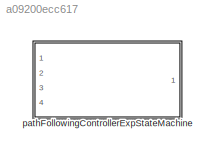
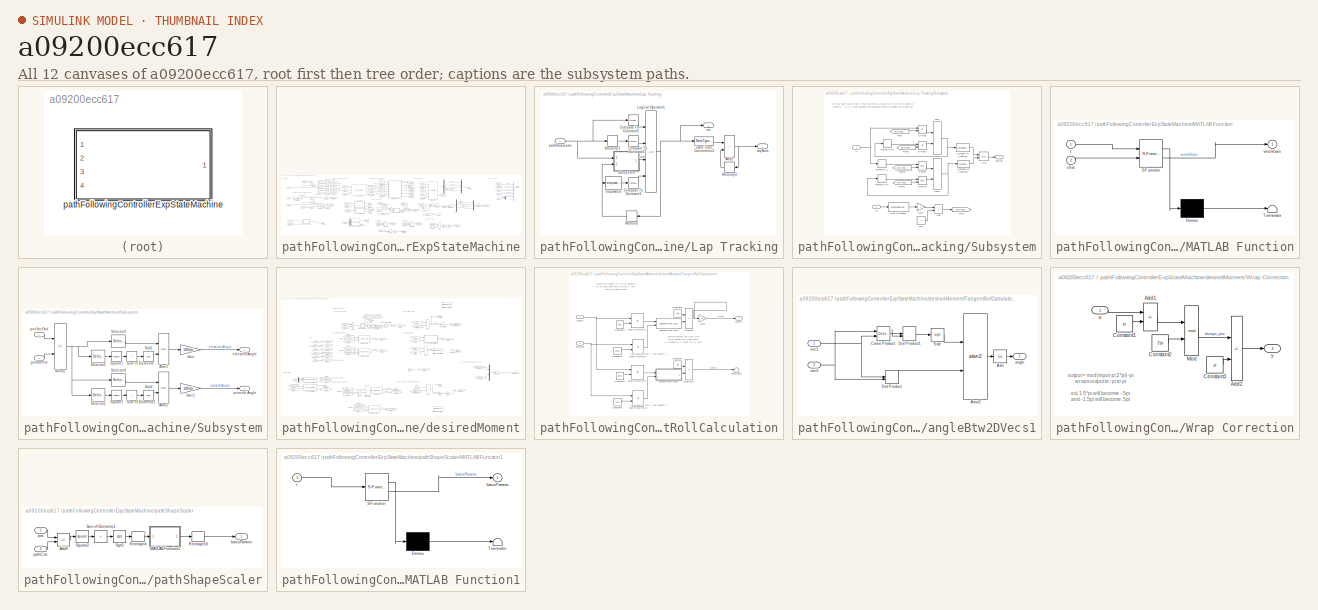
[diagram: thumbnail index - all 12 canvases of the model, root first then tree order]
MODEL slx_a09200ecc617
KIND library
CONFIG AbsTol = auto
CONFIG EnableMultiTasking = off
CONFIG FixedStep = auto
CONFIG MaxStep = auto
CONFIG MinStep = auto
CONFIG RelTol = 1e-3
CONFIG SampleTimeConstraint = Unconstrained
CONFIG SolverName = VariableStepAuto
CONFIG StartTime = 0.0
CONFIG StopTime = 10.0
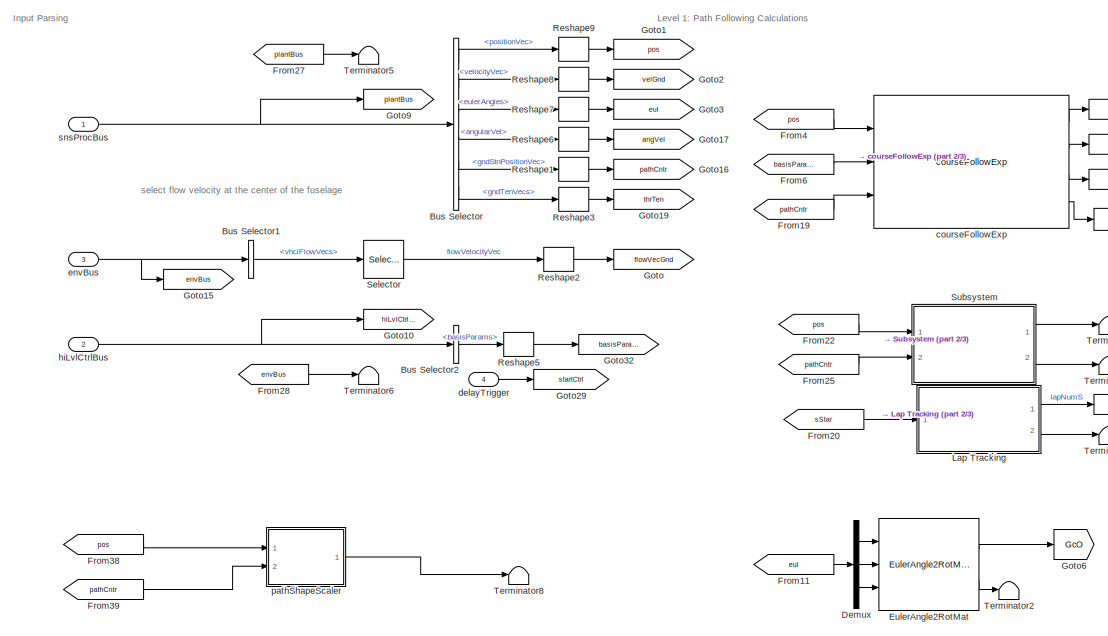
[diagram: pathFollowingControllerExpStateMachine - part 1/3, left side, full height]
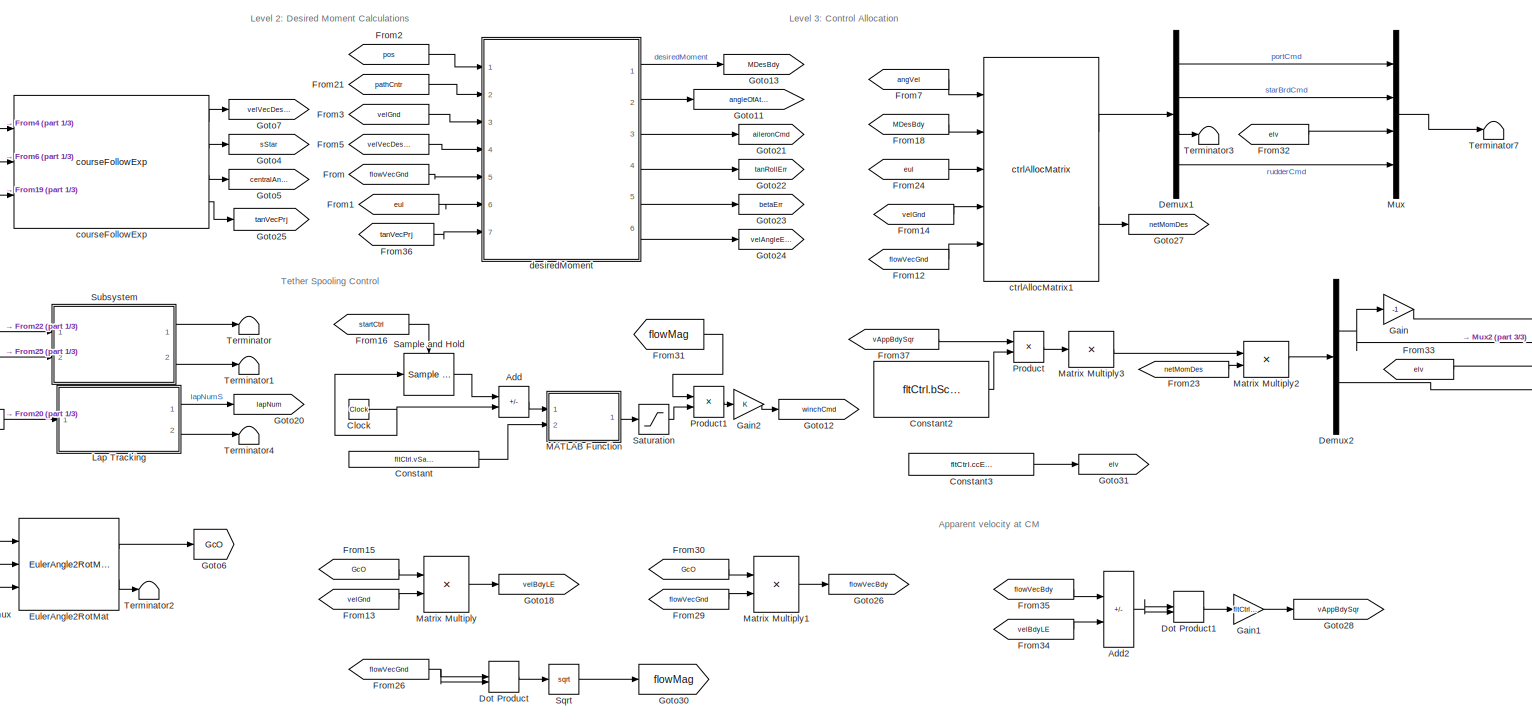
[diagram: pathFollowingControllerExpStateMachine - part 2/3, center side, full height]
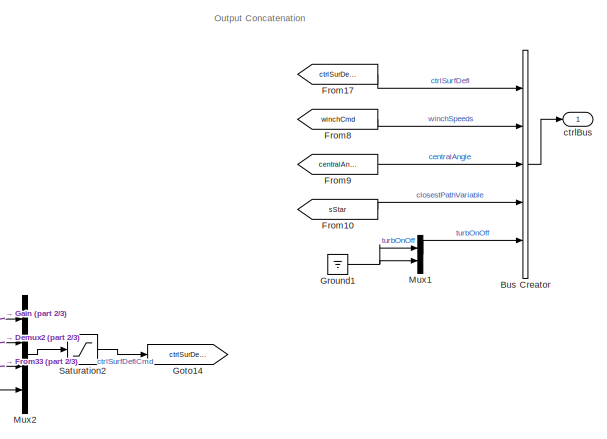
[diagram: pathFollowingControllerExpStateMachine - part 3/3, top right region]
BLOCK [SubSystem] pathFollowingControllerExpStateMachine
  InitFcn = initializeBussesFromBlock(gcb)
  LoadFcn = initializeBussesFromBlock(gcb)
  MinAlgLoopOccurrences = on
  Ports = [4, 1]
  RequestExecContextInheritance = off
  StartFcn = initializeBussesFromBlock(gcb)
  VariantControl = strcmpi(FLIGHTCONTROLLER,'pathFollowingControllerMantaBandLin')
BLOCK [Sum] pathFollowingControllerExpStateMachine/Add
  IconShape = rectangular
  Inputs = -+
  Ports = [2, 1]
BLOCK [Sum] pathFollowingControllerExpStateMachine/Add2
  IconShape = rectangular
  Inputs = +-
  Ports = [2, 1]
BLOCK [BusCreator] pathFollowingControllerExpStateMachine/Bus Creator
  DisplayOption = bar
  InheritFromInputs = off
  Inputs = 5
  OutDataTypeStr = Bus: fltCtrlBus
  Ports = [5, 1]
BLOCK [BusSelector] pathFollowingControllerExpStateMachine/Bus Selector
  OutputSignals = positionVec,velocityVec,eulerAngles,angularVel,gndStnPositionVec,gndTenVecs
  Ports = [1, 6]
BLOCK [BusSelector] pathFollowingControllerExpStateMachine/Bus Selector1
  OutputSignals = vhclFlowVecs
  Ports = [1, 1]
BLOCK [BusSelector] pathFollowingControllerExpStateMachine/Bus Selector2
  OutputSignals = basisParams
  Ports = [1, 1]
BLOCK [Clock] pathFollowingControllerExpStateMachine/Clock
BLOCK [Constant] pathFollowingControllerExpStateMachine/Constant
  Value = fltCtrl.vSat.Value
BLOCK [Constant] pathFollowingControllerExpStateMachine/Constant2
  Value = fltCtrl.bScale.Value
BLOCK [Constant] pathFollowingControllerExpStateMachine/Constant3
  Value = fltCtrl.ccElevator.Value
BLOCK [Demux] pathFollowingControllerExpStateMachine/Demux
  Outputs = 3
  Ports = [1, 3]
BLOCK [Demux] pathFollowingControllerExpStateMachine/Demux1
  Ports = [1, 4]
BLOCK [Demux] pathFollowingControllerExpStateMachine/Demux2
  Outputs = 2
  Ports = [1, 2]
BLOCK [DotProduct] pathFollowingControllerExpStateMachine/Dot Product
  OutDataTypeStr = Inherit: Inherit via internal rule
BLOCK [DotProduct] pathFollowingControllerExpStateMachine/Dot Product1
  OutDataTypeStr = Inherit: Inherit via internal rule
BLOCK [Reference] pathFollowingControllerExpStateMachine/EulerAngle2RotMat  REF=eulAng2RotMat_ul/EulerAngle2RotMat
  Ports = [3, 2]
  SourceBlock = eulAng2RotMat_ul/EulerAngle2RotMat
  SourceType = SubSystem
BLOCK [From] pathFollowingControllerExpStateMachine/From
  GotoTag = flowVecGnd
BLOCK [From] pathFollowingControllerExpStateMachine/From1
  GotoTag = eul
BLOCK [From] pathFollowingControllerExpStateMachine/From10
  GotoTag = sStar
BLOCK [From] pathFollowingControllerExpStateMachine/From11
  GotoTag = eul
BLOCK [From] pathFollowingControllerExpStateMachine/From12
  GotoTag = flowVecGnd
BLOCK [From] pathFollowingControllerExpStateMachine/From13
  GotoTag = velGnd
BLOCK [From] pathFollowingControllerExpStateMachine/From14
  GotoTag = velGnd
BLOCK [From] pathFollowingControllerExpStateMachine/From15
  GotoTag = GcO
BLOCK [From] pathFollowingControllerExpStateMachine/From16
  GotoTag = startCtrl
BLOCK [From] pathFollowingControllerExpStateMachine/From17
  GotoTag = ctrlSurDefl
BLOCK [From] pathFollowingControllerExpStateMachine/From18
  GotoTag = MDesBdy
BLOCK [From] pathFollowingControllerExpStateMachine/From19
  GotoTag = pathCntr
BLOCK [From] pathFollowingControllerExpStateMachine/From2
  GotoTag = pos
BLOCK [From] pathFollowingControllerExpStateMachine/From20
  GotoTag = sStar
BLOCK [From] pathFollowingControllerExpStateMachine/From21
  GotoTag = pathCntr
BLOCK [From] pathFollowingControllerExpStateMachine/From22
  GotoTag = pos
BLOCK [From] pathFollowingControllerExpStateMachine/From23
  GotoTag = netMomDes
BLOCK [From] pathFollowingControllerExpStateMachine/From24
  GotoTag = eul
BLOCK [From] pathFollowingControllerExpStateMachine/From25
  GotoTag = pathCntr
BLOCK [From] pathFollowingControllerExpStateMachine/From26
  GotoTag = flowVecGnd
BLOCK [From] pathFollowingControllerExpStateMachine/From27
  GotoTag = plantBus
BLOCK [From] pathFollowingControllerExpStateMachine/From28
  GotoTag = envBus
BLOCK [From] pathFollowingControllerExpStateMachine/From29
  GotoTag = flowVecGnd
BLOCK [From] pathFollowingControllerExpStateMachine/From3
  GotoTag = velGnd
BLOCK [From] pathFollowingControllerExpStateMachine/From30
  GotoTag = GcO
BLOCK [From] pathFollowingControllerExpStateMachine/From31
  GotoTag = flowMag
BLOCK [From] pathFollowingControllerExpStateMachine/From32
  GotoTag = elv
BLOCK [From] pathFollowingControllerExpStateMachine/From33
  GotoTag = elv
BLOCK [From] pathFollowingControllerExpStateMachine/From34
  GotoTag = velBdyLE
BLOCK [From] pathFollowingControllerExpStateMachine/From35
  GotoTag = flowVecBdy
BLOCK [From] pathFollowingControllerExpStateMachine/From36
  GotoTag = tanVecPrj
BLOCK [From] pathFollowingControllerExpStateMachine/From37
  GotoTag = vAppBdySqr
BLOCK [From] pathFollowingControllerExpStateMachine/From38
  GotoTag = pos
BLOCK [From] pathFollowingControllerExpStateMachine/From39
  GotoTag = pathCntr
BLOCK [From] pathFollowingControllerExpStateMachine/From4
  GotoTag = pos
BLOCK [From] pathFollowingControllerExpStateMachine/From5
  GotoTag = velVecDesGnd
BLOCK [From] pathFollowingControllerExpStateMachine/From6
  GotoTag = basisParams
BLOCK [From] pathFollowingControllerExpStateMachine/From7
  GotoTag = angVel
BLOCK [From] pathFollowingControllerExpStateMachine/From8
  GotoTag = winchCmd
BLOCK [From] pathFollowingControllerExpStateMachine/From9
  GotoTag = centralAngle
BLOCK [Gain] pathFollowingControllerExpStateMachine/Gain
  Gain = -1
BLOCK [Gain] pathFollowingControllerExpStateMachine/Gain1
  Gain = fltCtrl.vAppGain.Value
BLOCK [Gain] pathFollowingControllerExpStateMachine/Gain2
BLOCK [Goto] pathFollowingControllerExpStateMachine/Goto
  GotoTag = flowVecGnd
BLOCK [Goto] pathFollowingControllerExpStateMachine/Goto1
  GotoTag = pos
BLOCK [Goto] pathFollowingControllerExpStateMachine/Goto10
  GotoTag = hiLvlCtrlBus
BLOCK [Goto] pathFollowingControllerExpStateMachine/Goto11
  GotoTag = angleOfAttack
BLOCK [Goto] pathFollowingControllerExpStateMachine/Goto12
  GotoTag = winchCmd
BLOCK [Goto] pathFollowingControllerExpStateMachine/Goto13
  GotoTag = MDesBdy
BLOCK [Goto] pathFollowingControllerExpStateMachine/Goto14
  GotoTag = ctrlSurDefl
BLOCK [Goto] pathFollowingControllerExpStateMachine/Goto15
  GotoTag = envBus
BLOCK [Goto] pathFollowingControllerExpStateMachine/Goto16
  GotoTag = pathCntr
BLOCK [Goto] pathFollowingControllerExpStateMachine/Goto17
  GotoTag = angVel
BLOCK [Goto] pathFollowingControllerExpStateMachine/Goto18
  GotoTag = velBdyLE
BLOCK [Goto] pathFollowingControllerExpStateMachine/Goto19
  GotoTag = thrTen
BLOCK [Goto] pathFollowingControllerExpStateMachine/Goto2
  GotoTag = velGnd
BLOCK [Goto] pathFollowingControllerExpStateMachine/Goto20
  GotoTag = lapNum
BLOCK [Goto] pathFollowingControllerExpStateMachine/Goto21
  GotoTag = aileronCmd
BLOCK [Goto] pathFollowingControllerExpStateMachine/Goto22
  GotoTag = tanRollErr
BLOCK [Goto] pathFollowingControllerExpStateMachine/Goto23
  GotoTag = betaErr
BLOCK [Goto] pathFollowingControllerExpStateMachine/Goto24
  GotoTag = velAngleErr
BLOCK [Goto] pathFollowingControllerExpStateMachine/Goto25
  GotoTag = tanVecPrj
BLOCK [Goto] pathFollowingControllerExpStateMachine/Goto26
  GotoTag = flowVecBdy
BLOCK [Goto] pathFollowingControllerExpStateMachine/Goto27
  GotoTag = netMomDes
BLOCK [Goto] pathFollowingControllerExpStateMachine/Goto28
  GotoTag = vAppBdySqr
BLOCK [Goto] pathFollowingControllerExpStateMachine/Goto29
  GotoTag = startCtrl
BLOCK [Goto] pathFollowingControllerExpStateMachine/Goto3
  GotoTag = eul
BLOCK [Goto] pathFollowingControllerExpStateMachine/Goto30
  GotoTag = flowMag
BLOCK [Goto] pathFollowingControllerExpStateMachine/Goto31
  GotoTag = elv
BLOCK [Goto] pathFollowingControllerExpStateMachine/Goto32
  GotoTag = basisParams
BLOCK [Goto] pathFollowingControllerExpStateMachine/Goto4
  GotoTag = sStar
BLOCK [Goto] pathFollowingControllerExpStateMachine/Goto5
  GotoTag = centralAngle
BLOCK [Goto] pathFollowingControllerExpStateMachine/Goto6
  GotoTag = GcO
BLOCK [Goto] pathFollowingControllerExpStateMachine/Goto7
  GotoTag = velVecDesGnd
BLOCK [Goto] pathFollowingControllerExpStateMachine/Goto9
  GotoTag = plantBus
BLOCK [Ground] pathFollowingControllerExpStateMachine/Ground1
BLOCK [SubSystem] pathFollowingControllerExpStateMachine/Lap Tracking
  Ports = [1, 2]
  RequestExecContextInheritance = off
BLOCK [Sum] pathFollowingControllerExpStateMachine/Lap Tracking/Add2
  IconShape = rectangular
  Ports = [2, 1]
BLOCK [Reference] pathFollowingControllerExpStateMachine/Lap Tracking/Compare To Constant1  REF=simulink/Logic and Bit
Operations/Compare
To Constant
  Ports = [1, 1]
  SourceBlock = simulink/Logic and Bit\nOperations/Compare\nTo Constant
  SourceProductBaseCode = SL
  SourceType = Compare To Constant
BLOCK [Reference] pathFollowingControllerExpStateMachine/Lap Tracking/Compare To Constant3  REF=simulink/Logic and Bit
Operations/Compare
To Constant
  Ports = [1, 1]
  SourceBlock = simulink/Logic and Bit\nOperations/Compare\nTo Constant
  SourceProductBaseCode = SL
  SourceType = Compare To Constant
BLOCK [Reference] pathFollowingControllerExpStateMachine/Lap Tracking/Compare To Constant4  REF=simulink/Logic and Bit
Operations/Compare
To Constant
  Ports = [1, 1]
  SourceBlock = simulink/Logic and Bit\nOperations/Compare\nTo Constant
  SourceProductBaseCode = SL
  SourceType = Compare To Constant
BLOCK [DataTypeConversion] pathFollowingControllerExpStateMachine/Lap Tracking/Data Type Conversion2
  OutDataTypeStr = double
  RndMeth = Floor
  SaturateOnIntegerOverflow = off
BLOCK [Logic] pathFollowingControllerExpStateMachine/Lap Tracking/Logical Operator1
  AllPortsSameDT = off
  Inputs = 4
  OutDataTypeStr = boolean
  Ports = [4, 1]
BLOCK [Memory] pathFollowingControllerExpStateMachine/Lap Tracking/Memory
  InitialCondition = false
BLOCK [Memory] pathFollowingControllerExpStateMachine/Lap Tracking/Memory3
BLOCK [Memory] pathFollowingControllerExpStateMachine/Lap Tracking/Memory4
BLOCK [SubSystem] pathFollowingControllerExpStateMachine/Lap Tracking/Subsystem
  Ports = [2, 1]
  RequestExecContextInheritance = off
BLOCK [Logic] pathFollowingControllerExpStateMachine/Lap Tracking/Subsystem/AND
  AllPortsSameDT = off
  OutDataTypeStr = boolean
  Ports = [2, 1]
BLOCK [Sum] pathFollowingControllerExpStateMachine/Lap Tracking/Subsystem/Add
  IconShape = rectangular
  Ports = [2, 1]
BLOCK [DataTypeConversion] pathFollowingControllerExpStateMachine/Lap Tracking/Subsystem/Cast To Double
  OutDataTypeStr = double
  RndMeth = Floor
  SaturateOnIntegerOverflow = off
BLOCK [Reference] pathFollowingControllerExpStateMachine/Lap Tracking/Subsystem/Compare To Constant  REF=simulink/Logic and Bit
Operations/Compare
To Constant
  Ports = [1, 1]
  SourceBlock = simulink/Logic and Bit\nOperations/Compare\nTo Constant
  SourceProductBaseCode = SL
  SourceType = Compare To Constant
BLOCK [Reference] pathFollowingControllerExpStateMachine/Lap Tracking/Subsystem/Compare To Constant1  REF=simulink/Logic and Bit
Operations/Compare
To Constant
  Ports = [1, 1]
  SourceBlock = simulink/Logic and Bit\nOperations/Compare\nTo Constant
  SourceProductBaseCode = SL
  SourceType = Compare To Constant
BLOCK [Product] pathFollowingControllerExpStateMachine/Lap Tracking/Subsystem/Divide
  Inputs = **
  Ports = [2, 1]
BLOCK [Product] pathFollowingControllerExpStateMachine/Lap Tracking/Subsystem/Divide1
  Inputs = **
  Ports = [2, 1]
BLOCK [From] pathFollowingControllerExpStateMachine/Lap Tracking/Subsystem/From
  GotoTag = zeroIfReset
BLOCK [From] pathFollowingControllerExpStateMachine/Lap Tracking/Subsystem/From1
  GotoTag = zeroIfReset
BLOCK [From] pathFollowingControllerExpStateMachine/Lap Tracking/Subsystem/From2
  GotoTag = zeroIfReset
BLOCK [From] pathFollowingControllerExpStateMachine/Lap Tracking/Subsystem/From3
  GotoTag = zeroIfReset
BLOCK [Gain] pathFollowingControllerExpStateMachine/Lap Tracking/Subsystem/Gain
  Gain = -1
BLOCK [Goto] pathFollowingControllerExpStateMachine/Lap Tracking/Subsystem/Goto
  GotoTag = zeroIfReset
BLOCK [MinMax] pathFollowingControllerExpStateMachine/Lap Tracking/Subsystem/Max
  Function = max
  Inputs = 2
  Ports = [2, 1]
BLOCK [MinMax] pathFollowingControllerExpStateMachine/Lap Tracking/Subsystem/Max1
  Inputs = 2
  Ports = [2, 1]
BLOCK [Constant] pathFollowingControllerExpStateMachine/Lap Tracking/Subsystem/One
  OutDataTypeStr = Inherit: Inherit via back propagation
BLOCK [Math] pathFollowingControllerExpStateMachine/Lap Tracking/Subsystem/Power
  Operator = pow
  Ports = [2, 1]
BLOCK [Math] pathFollowingControllerExpStateMachine/Lap Tracking/Subsystem/Power1
  Operator = pow
  Ports = [2, 1]
BLOCK [Inport] pathFollowingControllerExpStateMachine/Lap Tracking/Subsystem/S
BLOCK [Memory] pathFollowingControllerExpStateMachine/Lap Tracking/Subsystem/memoryIC1
  InitialCondition = 1
BLOCK [Memory] pathFollowingControllerExpStateMachine/Lap Tracking/Subsystem/memoryIC=0
BLOCK [Memory] pathFollowingControllerExpStateMachine/Lap Tracking/Subsystem/memoryIC=1
  InitialCondition = 1
BLOCK [Outport] pathFollowingControllerExpStateMachine/Lap Tracking/Subsystem/realLap
BLOCK [Inport] pathFollowingControllerExpStateMachine/Lap Tracking/Subsystem/rst
  Port = 2
BLOCK [Outport] pathFollowingControllerExpStateMachine/Lap Tracking/lapNum
  VectorParamsAs1DForOutWhenUnconnected = off
BLOCK [Inport] pathFollowingControllerExpStateMachine/Lap Tracking/pathParameter
BLOCK [Outport] pathFollowingControllerExpStateMachine/Lap Tracking/rst
  Port = 2
  VectorParamsAs1DForOutWhenUnconnected = off
BLOCK [Reference] pathFollowingControllerExpStateMachine/Lap Tracking/stopwatch  REF=stopwatch_ul/stopwatch  (lib defined in slx_5231e8830116, slx_6b86a6863970)
  Ports = [1, 1]
  SourceBlock = stopwatch_ul/stopwatch
  SourceType = SubSystem
BLOCK [SubSystem] pathFollowingControllerExpStateMachine/MATLAB Function
  ErrorFcn = Stateflow.Translate.translate
  PermitHierarchicalResolution = ExplicitOnly
  Ports = [2, 1]
  RequestExecContextInheritance = off
  SFBlockType = MATLAB Function
  TreatAsAtomicUnit = on
BLOCK [Demux] pathFollowingControllerExpStateMachine/MATLAB Function/ Demux 
  Outputs = 1
  Ports = [1, 1]
BLOCK [S-Function] pathFollowingControllerExpStateMachine/MATLAB Function/ SFunction 
  EnableBusSupport = off
  FunctionName = sf_sfun
  PortCounts = [2 2]
  Ports = [2, 2]
  SFcnIsStateOwnerBlock = off
  SFunctionDeploymentMode = off
  Tag = Stateflow S-Function 8
BLOCK [Terminator] pathFollowingControllerExpStateMachine/MATLAB Function/ Terminator 
BLOCK [Inport] pathFollowingControllerExpStateMachine/MATLAB Function/t
BLOCK [Inport] pathFollowingControllerExpStateMachine/MATLAB Function/vSat
  Port = 2
BLOCK [Outport] pathFollowingControllerExpStateMachine/MATLAB Function/wnchGain
BLOCK [Product] pathFollowingControllerExpStateMachine/Matrix Multiply
  Multiplication = Matrix(*)
  Ports = [2, 1]
BLOCK [Product] pathFollowingControllerExpStateMachine/Matrix Multiply1
  Multiplication = Matrix(*)
  Ports = [2, 1]
BLOCK [Product] pathFollowingControllerExpStateMachine/Matrix Multiply2
  Multiplication = Matrix(*)
  Ports = [2, 1]
BLOCK [Product] pathFollowingControllerExpStateMachine/Matrix Multiply3
  Inputs = /
  Multiplication = Matrix(*)
  Ports = [1, 1]
BLOCK [Mux] pathFollowingControllerExpStateMachine/Mux
  DisplayOption = bar
  Ports = [4, 1]
BLOCK [Mux] pathFollowingControllerExpStateMachine/Mux1
  DisplayOption = bar
  Inputs = 2
  Ports = [2, 1]
BLOCK [Mux] pathFollowingControllerExpStateMachine/Mux2
  DisplayOption = bar
  Ports = [4, 1]
BLOCK [Product] pathFollowingControllerExpStateMachine/Product
  Ports = [2, 1]
BLOCK [Product] pathFollowingControllerExpStateMachine/Product1
  Ports = [2, 1]
BLOCK [Reshape] pathFollowingControllerExpStateMachine/Reshape1
  OutputDimensionality = Column vector (2-D)
  Ports = [1, 1]
BLOCK [Reshape] pathFollowingControllerExpStateMachine/Reshape2
  OutputDimensionality = Column vector (2-D)
  Ports = [1, 1]
BLOCK [Reshape] pathFollowingControllerExpStateMachine/Reshape3
  OutputDimensionality = Column vector (2-D)
  Ports = [1, 1]
BLOCK [Reshape] pathFollowingControllerExpStateMachine/Reshape5
  OutputDimensionality = Column vector (2-D)
  Ports = [1, 1]
BLOCK [Reshape] pathFollowingControllerExpStateMachine/Reshape6
  OutputDimensionality = Column vector (2-D)
  Ports = [1, 1]
BLOCK [Reshape] pathFollowingControllerExpStateMachine/Reshape7
  OutputDimensionality = Column vector (2-D)
  Ports = [1, 1]
BLOCK [Reshape] pathFollowingControllerExpStateMachine/Reshape8
  OutputDimensionality = Column vector (2-D)
  Ports = [1, 1]
BLOCK [Reshape] pathFollowingControllerExpStateMachine/Reshape9
  OutputDimensionality = Column vector (2-D)
  Ports = [1, 1]
BLOCK [Reference] pathFollowingControllerExpStateMachine/Sample and Hold  REF=dspsigops/Sample
and Hold
  Ports = [1, 1, 0, 1]
  SourceBlock = dspsigops/Sample\nand Hold
  SourceProductBaseCode = DS
  SourceType = Sample and Hold
BLOCK [Saturate] pathFollowingControllerExpStateMachine/Saturation
  LowerLimit = 0
  UpperLimit = fltCtrl.vSat.Value
BLOCK [Saturate] pathFollowingControllerExpStateMachine/Saturation2
  LowerLimit = pathCtrl.controlSigMax.lowerLimit.Value
  UpperLimit = pathCtrl.controlSigMax.upperLimit.Value
BLOCK [Selector] pathFollowingControllerExpStateMachine/Selector
  IndexOptions = Select all,Index vector (dialog)
  Indices = [1 3],5
  InputPortWidth = 3
  NumberOfDimensions = 2
  OutputSizes = 1,1
  Ports = [1, 1]
BLOCK [Sqrt] pathFollowingControllerExpStateMachine/Sqrt
BLOCK [SubSystem] pathFollowingControllerExpStateMachine/Subsystem
  Ports = [2, 2]
  RequestExecContextInheritance = off
BLOCK [Trigonometry] pathFollowingControllerExpStateMachine/Subsystem/Atan1
  Operator = atan2
  Ports = [2, 1]
BLOCK [Trigonometry] pathFollowingControllerExpStateMachine/Subsystem/Atan2
  Operator = atan2
  Ports = [2, 1]
BLOCK [Gain] pathFollowingControllerExpStateMachine/Subsystem/Gain
  Gain = 180/pi
BLOCK [Gain] pathFollowingControllerExpStateMachine/Subsystem/Gain1
  Gain = 180/pi
BLOCK [Sum] pathFollowingControllerExpStateMachine/Subsystem/Minus
  IconShape = rectangular
  Inputs = +-
  Ports = [2, 1]
BLOCK [Selector] pathFollowingControllerExpStateMachine/Subsystem/Selector1
  IndexOptions = Index vector (dialog)
  Indices = 1
  InputPortWidth = 3
  OutputSizes = 1
  Ports = [1, 1]
BLOCK [Selector] pathFollowingControllerExpStateMachine/Subsystem/Selector2
  IndexOptions = Index vector (dialog)
  Indices = [1 2]
  InputPortWidth = 3
  OutputSizes = 1
  Ports = [1, 1]
BLOCK [Selector] pathFollowingControllerExpStateMachine/Subsystem/Selector3
  IndexOptions = Index vector (dialog)
  Indices = 3
  InputPortWidth = 3
  OutputSizes = 1
  Ports = [1, 1]
BLOCK [Selector] pathFollowingControllerExpStateMachine/Subsystem/Selector4
  IndexOptions = Index vector (dialog)
  Indices = 2
  InputPortWidth = 3
  OutputSizes = 1
  Ports = [1, 1]
BLOCK [Sqrt] pathFollowingControllerExpStateMachine/Subsystem/Sqrt1
BLOCK [Sqrt] pathFollowingControllerExpStateMachine/Subsystem/Sqrt2
BLOCK [Math] pathFollowingControllerExpStateMachine/Subsystem/Square1
  Operator = square
  Ports = [1, 1]
  SignedPower = on
BLOCK [Math] pathFollowingControllerExpStateMachine/Subsystem/Square2
  Operator = square
  Ports = [1, 1]
  SignedPower = on
BLOCK [Sum] pathFollowingControllerExpStateMachine/Subsystem/Sum of Elements
  IconShape = rectangular
  Inputs = +
  Ports = [1, 1]
BLOCK [Sum] pathFollowingControllerExpStateMachine/Subsystem/Sum of Elements1
  IconShape = rectangular
  Inputs = +
  Ports = [1, 1]
BLOCK [Outport] pathFollowingControllerExpStateMachine/Subsystem/azimuth Angle
  Port = 2
BLOCK [Outport] pathFollowingControllerExpStateMachine/Subsystem/elevationAngle
BLOCK [Inport] pathFollowingControllerExpStateMachine/Subsystem/gndStnPos
  Port = 2
BLOCK [Inport] pathFollowingControllerExpStateMachine/Subsystem/posVecGnd
BLOCK [Terminator] pathFollowingControllerExpStateMachine/Terminator
BLOCK [Terminator] pathFollowingControllerExpStateMachine/Terminator1
BLOCK [Terminator] pathFollowingControllerExpStateMachine/Terminator2
BLOCK [Terminator] pathFollowingControllerExpStateMachine/Terminator3
BLOCK [Terminator] pathFollowingControllerExpStateMachine/Terminator4
BLOCK [Terminator] pathFollowingControllerExpStateMachine/Terminator5
BLOCK [Terminator] pathFollowingControllerExpStateMachine/Terminator6
BLOCK [Terminator] pathFollowingControllerExpStateMachine/Terminator7
BLOCK [Terminator] pathFollowingControllerExpStateMachine/Terminator8
BLOCK [Reference] pathFollowingControllerExpStateMachine/courseFollowExp  REF=courseFollowExp_cl/courseFollowExp
  Ports = [3, 4]
  SourceBlock = courseFollowExp_cl/courseFollowExp
  SourceType = SubSystem
BLOCK [Reference] pathFollowingControllerExpStateMachine/ctrlAllocMatrix1  REF=ctrlAllocMatrixExp_cl/ctrlAllocMatrix
  Ports = [5, 2]
  SourceBlock = ctrlAllocMatrixExp_cl/ctrlAllocMatrix
BLOCK [Outport] pathFollowingControllerExpStateMachine/ctrlBus
  OutDataTypeStr = Bus: fltCtrlBus
  VectorParamsAs1DForOutWhenUnconnected = off
BLOCK [Inport] pathFollowingControllerExpStateMachine/delayTrigger
  Port = 4
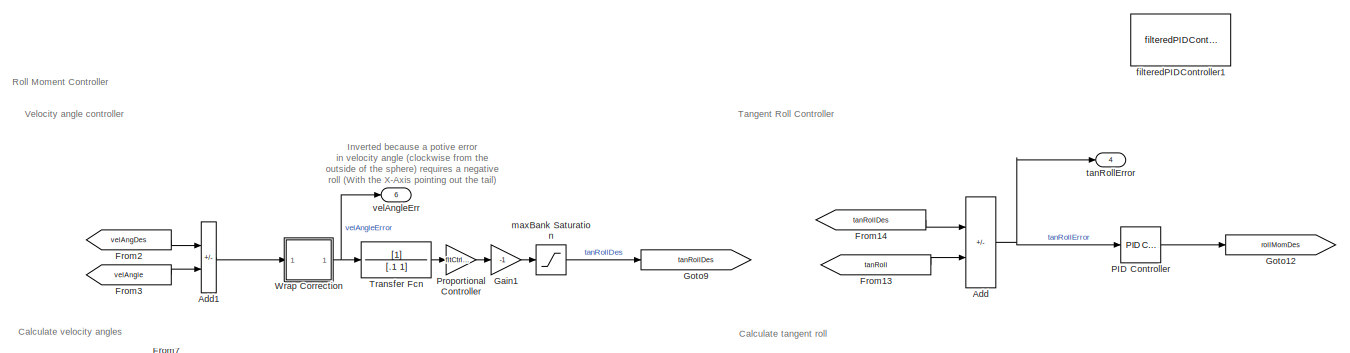
[diagram: pathFollowingControllerExpStateMachine/desiredMoment - part 1/3, top center region]
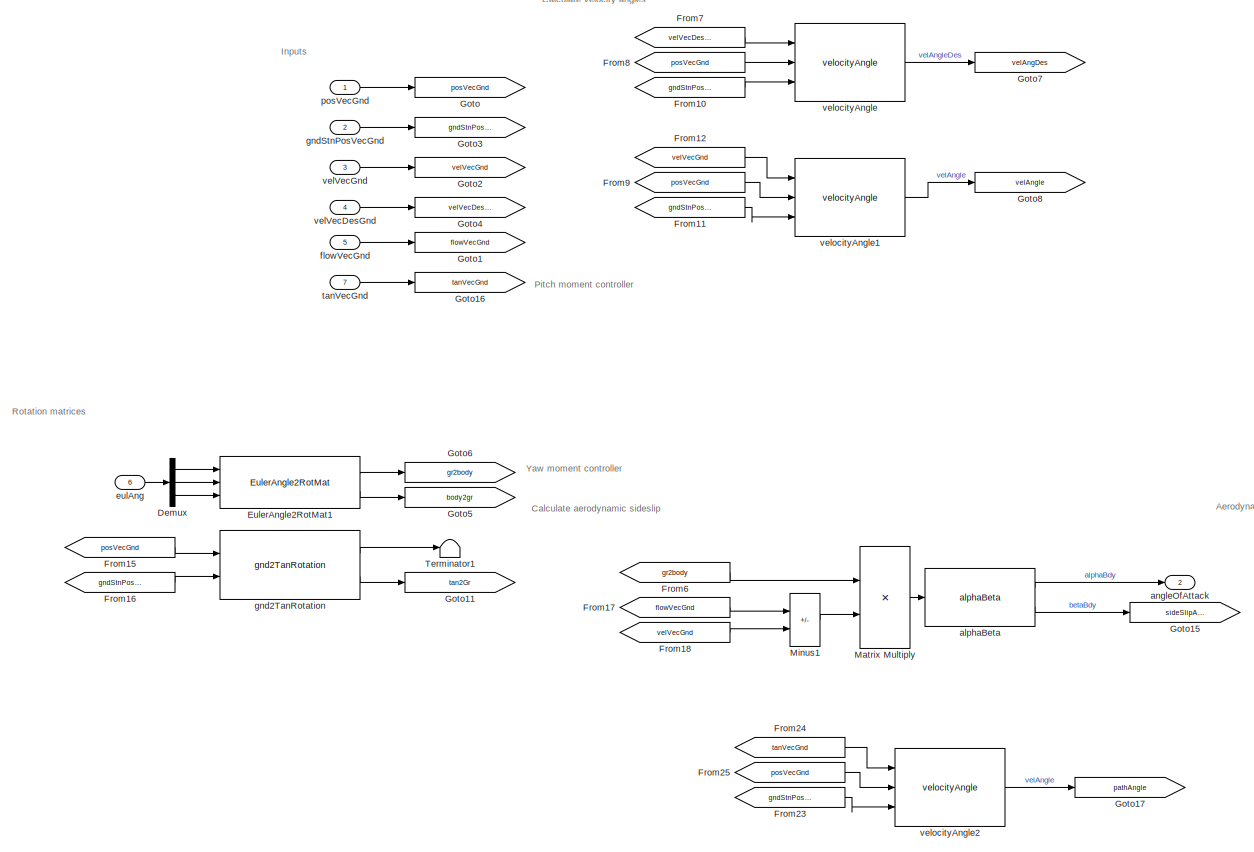
[diagram: pathFollowingControllerExpStateMachine/desiredMoment - part 2/3, middle left region]
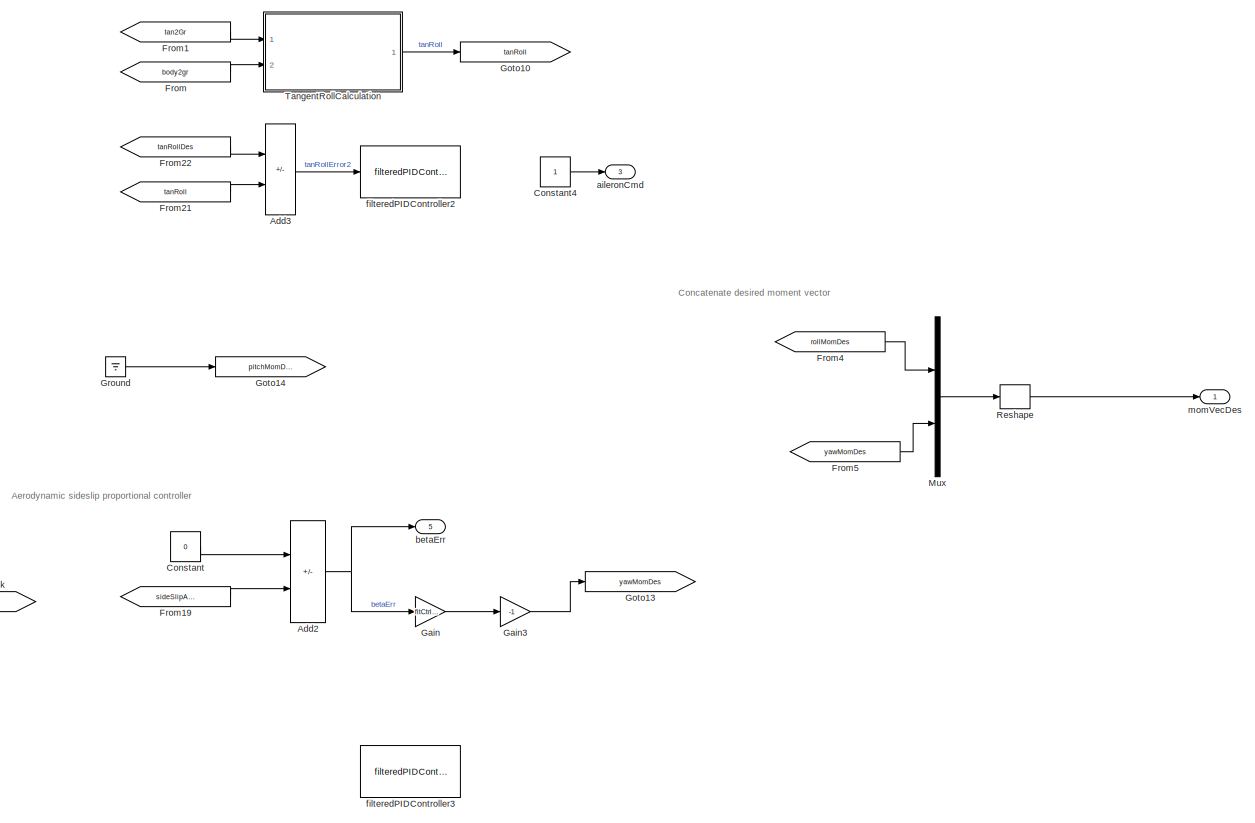
[diagram: pathFollowingControllerExpStateMachine/desiredMoment - part 3/3, middle right region]
BLOCK [SubSystem] pathFollowingControllerExpStateMachine/desiredMoment
  Ports = [7, 6]
  RequestExecContextInheritance = off
BLOCK [Sum] pathFollowingControllerExpStateMachine/desiredMoment/Add
  IconShape = rectangular
  Inputs = +-
  Ports = [2, 1]
BLOCK [Sum] pathFollowingControllerExpStateMachine/desiredMoment/Add1
  IconShape = rectangular
  Inputs = +-
  Ports = [2, 1]
BLOCK [Sum] pathFollowingControllerExpStateMachine/desiredMoment/Add2
  IconShape = rectangular
  Inputs = +-
  Ports = [2, 1]
BLOCK [Sum] pathFollowingControllerExpStateMachine/desiredMoment/Add3
  Commented = on
  IconShape = rectangular
  Inputs = +-
  Ports = [2, 1]
BLOCK [Constant] pathFollowingControllerExpStateMachine/desiredMoment/Constant
  Value = 0
BLOCK [Constant] pathFollowingControllerExpStateMachine/desiredMoment/Constant4
BLOCK [Demux] pathFollowingControllerExpStateMachine/desiredMoment/Demux
  Outputs = 3
  Ports = [1, 3]
BLOCK [Reference] pathFollowingControllerExpStateMachine/desiredMoment/EulerAngle2RotMat1  REF=eulAng2RotMat_ul/EulerAngle2RotMat
  Ports = [3, 2]
  SourceBlock = eulAng2RotMat_ul/EulerAngle2RotMat
  SourceType = SubSystem
BLOCK [From] pathFollowingControllerExpStateMachine/desiredMoment/From
  GotoTag = body2gr
BLOCK [From] pathFollowingControllerExpStateMachine/desiredMoment/From1
  GotoTag = tan2Gr
BLOCK [From] pathFollowingControllerExpStateMachine/desiredMoment/From10
  GotoTag = gndStnPosVecGnd
BLOCK [From] pathFollowingControllerExpStateMachine/desiredMoment/From11
  GotoTag = gndStnPosVecGnd
BLOCK [From] pathFollowingControllerExpStateMachine/desiredMoment/From12
  GotoTag = velVecGnd
BLOCK [From] pathFollowingControllerExpStateMachine/desiredMoment/From13
  GotoTag = tanRoll
BLOCK [From] pathFollowingControllerExpStateMachine/desiredMoment/From14
  GotoTag = tanRollDes
BLOCK [From] pathFollowingControllerExpStateMachine/desiredMoment/From15
  GotoTag = posVecGnd
BLOCK [From] pathFollowingControllerExpStateMachine/desiredMoment/From16
  GotoTag = gndStnPosVecGnd
BLOCK [From] pathFollowingControllerExpStateMachine/desiredMoment/From17
  GotoTag = flowVecGnd
BLOCK [From] pathFollowingControllerExpStateMachine/desiredMoment/From18
  GotoTag = velVecGnd
BLOCK [From] pathFollowingControllerExpStateMachine/desiredMoment/From19
  GotoTag = sideSlipAngle
BLOCK [From] pathFollowingControllerExpStateMachine/desiredMoment/From2
  GotoTag = velAngDes
BLOCK [From] pathFollowingControllerExpStateMachine/desiredMoment/From21
  Commented = on
  GotoTag = tanRoll
BLOCK [From] pathFollowingControllerExpStateMachine/desiredMoment/From22
  Commented = on
  GotoTag = tanRollDes
BLOCK [From] pathFollowingControllerExpStateMachine/desiredMoment/From23
  GotoTag = gndStnPosVecGnd
BLOCK [From] pathFollowingControllerExpStateMachine/desiredMoment/From24
  GotoTag = tanVecGnd
BLOCK [From] pathFollowingControllerExpStateMachine/desiredMoment/From25
  GotoTag = posVecGnd
BLOCK [From] pathFollowingControllerExpStateMachine/desiredMoment/From3
  GotoTag = velAngle
BLOCK [From] pathFollowingControllerExpStateMachine/desiredMoment/From4
  GotoTag = rollMomDes
BLOCK [From] pathFollowingControllerExpStateMachine/desiredMoment/From5
  GotoTag = yawMomDes
BLOCK [From] pathFollowingControllerExpStateMachine/desiredMoment/From6
  GotoTag = gr2body
BLOCK [From] pathFollowingControllerExpStateMachine/desiredMoment/From7
  GotoTag = velVecDesGnd
BLOCK [From] pathFollowingControllerExpStateMachine/desiredMoment/From8
  GotoTag = posVecGnd
BLOCK [From] pathFollowingControllerExpStateMachine/desiredMoment/From9
  GotoTag = posVecGnd
BLOCK [Gain] pathFollowingControllerExpStateMachine/desiredMoment/Gain
  Gain = fltCtrl.yawMoment.kp.Value
BLOCK [Gain] pathFollowingControllerExpStateMachine/desiredMoment/Gain1
  Gain = -1
BLOCK [Gain] pathFollowingControllerExpStateMachine/desiredMoment/Gain3
  Gain = -1
BLOCK [Goto] pathFollowingControllerExpStateMachine/desiredMoment/Goto
  GotoTag = posVecGnd
BLOCK [Goto] pathFollowingControllerExpStateMachine/desiredMoment/Goto1
  GotoTag = flowVecGnd
BLOCK [Goto] pathFollowingControllerExpStateMachine/desiredMoment/Goto10
  GotoTag = tanRoll
BLOCK [Goto] pathFollowingControllerExpStateMachine/desiredMoment/Goto11
  GotoTag = tan2Gr
BLOCK [Goto] pathFollowingControllerExpStateMachine/desiredMoment/Goto12
  GotoTag = rollMomDes
BLOCK [Goto] pathFollowingControllerExpStateMachine/desiredMoment/Goto13
  GotoTag = yawMomDes
BLOCK [Goto] pathFollowingControllerExpStateMachine/desiredMoment/Goto14
  GotoTag = pitchMomDes
BLOCK [Goto] pathFollowingControllerExpStateMachine/desiredMoment/Goto15
  GotoTag = sideSlipAngle
BLOCK [Goto] pathFollowingControllerExpStateMachine/desiredMoment/Goto16
  GotoTag = tanVecGnd
BLOCK [Goto] pathFollowingControllerExpStateMachine/desiredMoment/Goto17
  GotoTag = pathAngle
BLOCK [Goto] pathFollowingControllerExpStateMachine/desiredMoment/Goto2
  GotoTag = velVecGnd
BLOCK [Goto] pathFollowingControllerExpStateMachine/desiredMoment/Goto3
  GotoTag = gndStnPosVecGnd
BLOCK [Goto] pathFollowingControllerExpStateMachine/desiredMoment/Goto4
  GotoTag = velVecDesGnd
BLOCK [Goto] pathFollowingControllerExpStateMachine/desiredMoment/Goto5
  GotoTag = body2gr
BLOCK [Goto] pathFollowingControllerExpStateMachine/desiredMoment/Goto6
  GotoTag = gr2body
BLOCK [Goto] pathFollowingControllerExpStateMachine/desiredMoment/Goto7
  GotoTag = velAngDes
BLOCK [Goto] pathFollowingControllerExpStateMachine/desiredMoment/Goto8
  GotoTag = velAngle
BLOCK [Goto] pathFollowingControllerExpStateMachine/desiredMoment/Goto9
  GotoTag = tanRollDes
BLOCK [Ground] pathFollowingControllerExpStateMachine/desiredMoment/Ground
BLOCK [Product] pathFollowingControllerExpStateMachine/desiredMoment/Matrix Multiply
  Multiplication = Matrix(*)
  Ports = [2, 1]
BLOCK [Sum] pathFollowingControllerExpStateMachine/desiredMoment/Minus1
  IconShape = rectangular
  Inputs = +-
  Ports = [2, 1]
BLOCK [Mux] pathFollowingControllerExpStateMachine/desiredMoment/Mux
  DisplayOption = bar
  Inputs = 2
  Ports = [2, 1]
BLOCK [Reference] pathFollowingControllerExpStateMachine/desiredMoment/PID Controller  REF=slpidlib/PID Controller
  Ports = [1, 1]
  SourceBlock = slpidlib/PID Controller
  SourceProductBaseCode = SL
  SourceType = PID 1dof
BLOCK [Gain] pathFollowingControllerExpStateMachine/desiredMoment/Proportional Controller
  Gain = fltCtrl.tanRoll.kp.Value
BLOCK [Reshape] pathFollowingControllerExpStateMachine/desiredMoment/Reshape
  OutputDimensionality = Column vector (2-D)
  Ports = [1, 1]
BLOCK [SubSystem] pathFollowingControllerExpStateMachine/desiredMoment/TangentRollCalculation
  Ports = [2, 1]
  RequestExecContextInheritance = off
BLOCK [Constant] pathFollowingControllerExpStateMachine/desiredMoment/TangentRollCalculation/Constant1
  Value = pi/2
BLOCK [Constant] pathFollowingControllerExpStateMachine/desiredMoment/TangentRollCalculation/Constant2
  Value = pi/2
BLOCK [Constant] pathFollowingControllerExpStateMachine/desiredMoment/TangentRollCalculation/Constant3
  Value = [0 1 0]'
BLOCK [Constant] pathFollowingControllerExpStateMachine/desiredMoment/TangentRollCalculation/Constant4
  Value = [0 0 1]'
BLOCK [Constant] pathFollowingControllerExpStateMachine/desiredMoment/TangentRollCalculation/Constant5
  Value = [1 0 0]'
BLOCK [Constant] pathFollowingControllerExpStateMachine/desiredMoment/TangentRollCalculation/Constant6
  Value = [0 0 1]'
BLOCK [Gain] pathFollowingControllerExpStateMachine/desiredMoment/TangentRollCalculation/Gain
  Gain = -1
BLOCK [Product] pathFollowingControllerExpStateMachine/desiredMoment/TangentRollCalculation/Matrix Multiply
  Multiplication = Matrix(*)
  Ports = [2, 1]
BLOCK [Product] pathFollowingControllerExpStateMachine/desiredMoment/TangentRollCalculation/Matrix Multiply1
  Multiplication = Matrix(*)
  Ports = [2, 1]
BLOCK [Product] pathFollowingControllerExpStateMachine/desiredMoment/TangentRollCalculation/Matrix Multiply2
  Multiplication = Matrix(*)
  Ports = [2, 1]
BLOCK [Product] pathFollowingControllerExpStateMachine/desiredMoment/TangentRollCalculation/Matrix Multiply3
  Multiplication = Matrix(*)
  Ports = [2, 1]
BLOCK [Sum] pathFollowingControllerExpStateMachine/desiredMoment/TangentRollCalculation/Subtract
  IconShape = rectangular
  Inputs = +-
  Ports = [2, 1]
BLOCK [Sum] pathFollowingControllerExpStateMachine/desiredMoment/TangentRollCalculation/Subtract1
  IconShape = rectangular
  Inputs = +-
  Ports = [2, 1]
BLOCK [Terminator] pathFollowingControllerExpStateMachine/desiredMoment/TangentRollCalculation/Terminator
BLOCK [Reference] pathFollowingControllerExpStateMachine/desiredMoment/TangentRollCalculation/angleBtw2DVecs  REF=angleBtw2Vecs_ul/angleBtw2DVecs
  Ports = [2, 1]
  SourceBlock = angleBtw2Vecs_ul/angleBtw2DVecs
  SourceType = SubSystem
BLOCK [SubSystem] pathFollowingControllerExpStateMachine/desiredMoment/TangentRollCalculation/angleBtw2DVecs1
  Ports = [2, 1]
  RequestExecContextInheritance = off
BLOCK [Abs] pathFollowingControllerExpStateMachine/desiredMoment/TangentRollCalculation/angleBtw2DVecs1/Abs
  SaturateOnIntegerOverflow = off
BLOCK [Trigonometry] pathFollowingControllerExpStateMachine/desiredMoment/TangentRollCalculation/angleBtw2DVecs1/Atan2
  Operator = atan2
  Ports = [2, 1]
BLOCK [Reference] pathFollowingControllerExpStateMachine/desiredMoment/TangentRollCalculation/angleBtw2DVecs1/Cross Product  REF=vrlib/Utilities/Cross Product
  Ports = [2, 1]
  SourceBlock = vrlib/Utilities/Cross Product
  SourceProductBaseCode = SL
  SourceType = Cross Product
BLOCK [DotProduct] pathFollowingControllerExpStateMachine/desiredMoment/TangentRollCalculation/angleBtw2DVecs1/Dot Product
  OutDataTypeStr = Inherit: Inherit via internal rule
BLOCK [DotProduct] pathFollowingControllerExpStateMachine/desiredMoment/TangentRollCalculation/angleBtw2DVecs1/Dot Product1
  OutDataTypeStr = Inherit: Inherit via internal rule
BLOCK [Sqrt] pathFollowingControllerExpStateMachine/desiredMoment/TangentRollCalculation/angleBtw2DVecs1/Sqrt
BLOCK [Outport] pathFollowingControllerExpStateMachine/desiredMoment/TangentRollCalculation/angleBtw2DVecs1/angle
  VectorParamsAs1DForOutWhenUnconnected = off
BLOCK [Inport] pathFollowingControllerExpStateMachine/desiredMoment/TangentRollCalculation/angleBtw2DVecs1/vec1
BLOCK [Inport] pathFollowingControllerExpStateMachine/desiredMoment/TangentRollCalculation/angleBtw2DVecs1/vec2
  Port = 2
BLOCK [Inport] pathFollowingControllerExpStateMachine/desiredMoment/TangentRollCalculation/bdy2Inert
  Port = 2
BLOCK [Inport] pathFollowingControllerExpStateMachine/desiredMoment/TangentRollCalculation/tan2Gr
BLOCK [Outport] pathFollowingControllerExpStateMachine/desiredMoment/TangentRollCalculation/tanRoll
  VectorParamsAs1DForOutWhenUnconnected = off
BLOCK [Terminator] pathFollowingControllerExpStateMachine/desiredMoment/Terminator1
BLOCK [TransferFcn] pathFollowingControllerExpStateMachine/desiredMoment/Transfer Fcn
  Denominator = [.1 1]
BLOCK [SubSystem] pathFollowingControllerExpStateMachine/desiredMoment/Wrap Correction
  Ports = [1, 1]
  RequestExecContextInheritance = off
BLOCK [Sum] pathFollowingControllerExpStateMachine/desiredMoment/Wrap Correction/Add1
  IconShape = rectangular
  Inputs = +-
  Ports = [2, 1]
BLOCK [Sum] pathFollowingControllerExpStateMachine/desiredMoment/Wrap Correction/Add2
  IconShape = rectangular
  Inputs = +-
  Ports = [2, 1]
BLOCK [Constant] pathFollowingControllerExpStateMachine/desiredMoment/Wrap Correction/Constant1
  Value = pi
BLOCK [Constant] pathFollowingControllerExpStateMachine/desiredMoment/Wrap Correction/Constant2
  Value = 2*pi
BLOCK [Constant] pathFollowingControllerExpStateMachine/desiredMoment/Wrap Correction/Constant3
  Value = pi
BLOCK [Math] pathFollowingControllerExpStateMachine/desiredMoment/Wrap Correction/Mod
  Operator = mod
  Ports = [2, 1]
  SignedPower = on
BLOCK [Inport] pathFollowingControllerExpStateMachine/desiredMoment/Wrap Correction/u
BLOCK [Outport] pathFollowingControllerExpStateMachine/desiredMoment/Wrap Correction/y
  VectorParamsAs1DForOutWhenUnconnected = off
BLOCK [Outport] pathFollowingControllerExpStateMachine/desiredMoment/aileronCmd
  Port = 3
  VectorParamsAs1DForOutWhenUnconnected = off
BLOCK [Reference] pathFollowingControllerExpStateMachine/desiredMoment/alphaBeta  REF=alphaBeta_ul/alphaBeta
  Ports = [1, 2]
  SourceBlock = alphaBeta_ul/alphaBeta
  SourceType = SubSystem
BLOCK [Outport] pathFollowingControllerExpStateMachine/desiredMoment/angleOfAttack
  Port = 2
  VectorParamsAs1DForOutWhenUnconnected = off
BLOCK [Outport] pathFollowingControllerExpStateMachine/desiredMoment/betaErr
  Port = 5
BLOCK [Inport] pathFollowingControllerExpStateMachine/desiredMoment/eulAng
  Port = 6
BLOCK [Reference] pathFollowingControllerExpStateMachine/desiredMoment/filteredPIDController1  REF=filteredPIDController_ul/filteredPIDController
  Commented = on
  Ports = [1, 1]
  SourceBlock = filteredPIDController_ul/filteredPIDController
BLOCK [Reference] pathFollowingControllerExpStateMachine/desiredMoment/filteredPIDController2  REF=filteredPIDController_ul/filteredPIDController
  Commented = on
  Ports = [1, 1]
  SourceBlock = filteredPIDController_ul/filteredPIDController
BLOCK [Reference] pathFollowingControllerExpStateMachine/desiredMoment/filteredPIDController3  REF=filteredPIDController_ul/filteredPIDController
  Commented = on
  Ports = [1, 1]
  SourceBlock = filteredPIDController_ul/filteredPIDController
BLOCK [Inport] pathFollowingControllerExpStateMachine/desiredMoment/flowVecGnd
  Port = 5
BLOCK [Reference] pathFollowingControllerExpStateMachine/desiredMoment/gnd2TanRotation  REF=gnd2TanRotation_ul/gnd2TanRotation
  Ports = [2, 2]
  SourceBlock = gnd2TanRotation_ul/gnd2TanRotation
  SourceType = SubSystem
BLOCK [Inport] pathFollowingControllerExpStateMachine/desiredMoment/gndStnPosVecGnd
  Port = 2
BLOCK [Saturate] pathFollowingControllerExpStateMachine/desiredMoment/maxBank Saturation
  LowerLimit = pathCtrl.maxBank.lowerLimit.Value
  UpperLimit = pathCtrl.maxBank.upperLimit.Value
BLOCK [Outport] pathFollowingControllerExpStateMachine/desiredMoment/momVecDes
  VectorParamsAs1DForOutWhenUnconnected = off
BLOCK [Inport] pathFollowingControllerExpStateMachine/desiredMoment/posVecGnd
BLOCK [Outport] pathFollowingControllerExpStateMachine/desiredMoment/tanRollError
  Port = 4
BLOCK [Inport] pathFollowingControllerExpStateMachine/desiredMoment/tanVecGnd
  Port = 7
BLOCK [Outport] pathFollowingControllerExpStateMachine/desiredMoment/velAngleErr
  Port = 6
BLOCK [Inport] pathFollowingControllerExpStateMachine/desiredMoment/velVecDesGnd
  Port = 4
BLOCK [Inport] pathFollowingControllerExpStateMachine/desiredMoment/velVecGnd
  Port = 3
BLOCK [Reference] pathFollowingControllerExpStateMachine/desiredMoment/velocityAngle  REF=velocityAngle_ul/velocityAngle
  Ports = [3, 1]
  SourceBlock = velocityAngle_ul/velocityAngle
  SourceType = SubSystem
BLOCK [Reference] pathFollowingControllerExpStateMachine/desiredMoment/velocityAngle1  REF=velocityAngle_ul/velocityAngle
  Ports = [3, 1]
  SourceBlock = velocityAngle_ul/velocityAngle
  SourceType = SubSystem
BLOCK [Reference] pathFollowingControllerExpStateMachine/desiredMoment/velocityAngle2  REF=velocityAngle_ul/velocityAngle
  Ports = [3, 1]
  SourceBlock = velocityAngle_ul/velocityAngle
  SourceType = SubSystem
BLOCK [Inport] pathFollowingControllerExpStateMachine/envBus
  OutDataTypeStr = Bus: envBus
  Port = 3
BLOCK [Inport] pathFollowingControllerExpStateMachine/hiLvlCtrlBus
  OutDataTypeStr = Bus: hiLvlCtrlBus
  Port = 2
BLOCK [SubSystem] pathFollowingControllerExpStateMachine/pathShapeScaler
  Ports = [2, 1]
  RequestExecContextInheritance = off
BLOCK [Sum] pathFollowingControllerExpStateMachine/pathShapeScaler/Add9
  IconShape = rectangular
  Inputs = +-
  Ports = [2, 1]
BLOCK [SubSystem] pathFollowingControllerExpStateMachine/pathShapeScaler/MATLAB Function1
  ErrorFcn = Stateflow.Translate.translate
  PermitHierarchicalResolution = ExplicitOnly
  Ports = [1, 1]
  RequestExecContextInheritance = off
  SFBlockType = MATLAB Function
  TreatAsAtomicUnit = on
BLOCK [Demux] pathFollowingControllerExpStateMachine/pathShapeScaler/MATLAB Function1/ Demux 
  Outputs = 1
  Ports = [1, 1]
BLOCK [S-Function] pathFollowingControllerExpStateMachine/pathShapeScaler/MATLAB Function1/ SFunction 
  EnableBusSupport = off
  FunctionName = sf_sfun
  PortCounts = [1 2]
  Ports = [1, 2]
  SFcnIsStateOwnerBlock = off
  SFunctionDeploymentMode = off
  Tag = Stateflow S-Function 2
BLOCK [Terminator] pathFollowingControllerExpStateMachine/pathShapeScaler/MATLAB Function1/ Terminator 
BLOCK [Outport] pathFollowingControllerExpStateMachine/pathShapeScaler/MATLAB Function1/basisParams
BLOCK [Inport] pathFollowingControllerExpStateMachine/pathShapeScaler/MATLAB Function1/r
BLOCK [Reshape] pathFollowingControllerExpStateMachine/pathShapeScaler/Reshape10
  OutputDimensionality = Column vector (2-D)
  Ports = [1, 1]
BLOCK [Reshape] pathFollowingControllerExpStateMachine/pathShapeScaler/Reshape4
  Ports = [1, 1]
BLOCK [Sqrt] pathFollowingControllerExpStateMachine/pathShapeScaler/Sqrt2
BLOCK [Math] pathFollowingControllerExpStateMachine/pathShapeScaler/Square2
  Operator = square
  Ports = [1, 1]
BLOCK [Sum] pathFollowingControllerExpStateMachine/pathShapeScaler/Sum of Elements1
  IconShape = rectangular
  Inputs = +
  Ports = [1, 1]
BLOCK [Outport] pathFollowingControllerExpStateMachine/pathShapeScaler/basisParams
BLOCK [Inport] pathFollowingControllerExpStateMachine/pathShapeScaler/pathCntr
  Port = 2
BLOCK [Inport] pathFollowingControllerExpStateMachine/pathShapeScaler/pos
BLOCK [Inport] pathFollowingControllerExpStateMachine/snsProcBus
  OutDataTypeStr = Bus: sensorsProcessingBus
ANNOTATION pathFollowingControllerExpStateMachine: Apparent velocity at CM
ANNOTATION pathFollowingControllerExpStateMachine: Input Parsing
ANNOTATION pathFollowingControllerExpStateMachine: Level 1: Path Following Calculations
ANNOTATION pathFollowingControllerExpStateMachine: Level 2: Desired Moment Calculations
ANNOTATION pathFollowingControllerExpStateMachine: Level 3: Control Allocation
ANNOTATION pathFollowingControllerExpStateMachine: Output Concatenation
ANNOTATION pathFollowingControllerExpStateMachine: Tether Spooling Control
ANNOTATION pathFollowingControllerExpStateMachine: select flow velocity at the center of the fuselage
ANNOTATION pathFollowingControllerExpStateMachine/Lap Tracking/Subsystem: this may have issues when it starts up after a hiatus for a multicycle spool in Hopefully, it will work because the reasonable spooling ranges are already set
ANNOTATION pathFollowingControllerExpStateMachine/desiredMoment: Aerodynamic sideslip proportional controller
ANNOTATION pathFollowingControllerExpStateMachine/desiredMoment: Calculate aerodynamic sideslip
ANNOTATION pathFollowingControllerExpStateMachine/desiredMoment: Calculate tangent roll
ANNOTATION pathFollowingControllerExpStateMachine/desiredMoment: Calculate velocity angles
ANNOTATION pathFollowingControllerExpStateMachine/desiredMoment: Concatenate desired moment vector
ANNOTATION pathFollowingControllerExpStateMachine/desiredMoment: Inputs
ANNOTATION pathFollowingControllerExpStateMachine/desiredMoment: Inverted because a potive error in velocity angle (clockwise from the outside of the sphere) requires a negative roll (With the X-Axis pointing out the tail)
ANNOTATION pathFollowingControllerExpStateMachine/desiredMoment: Pitch moment controller
ANNOTATION pathFollowingControllerExpStateMachine/desiredMoment: Roll Moment Controller
ANNOTATION pathFollowingControllerExpStateMachine/desiredMoment: Rotation matrices
ANNOTATION pathFollowingControllerExpStateMachine/desiredMoment: Tangent Roll Controller
ANNOTATION pathFollowingControllerExpStateMachine/desiredMoment: Velocity angle controller
ANNOTATION pathFollowingControllerExpStateMachine/desiredMoment: Yaw moment controller
ANNOTATION pathFollowingControllerExpStateMachine/desiredMoment/TangentRollCalculation: Measuring tangent roll as the opposite of the angle between the Body Y axis and the tangent plane
ANNOTATION pathFollowingControllerExpStateMachine/desiredMoment/TangentRollCalculation: Angle between body X and tangent Z
ANNOTATION pathFollowingControllerExpStateMachine/desiredMoment/TangentRollCalculation: Angle between body Y and tangent Z
ANNOTATION pathFollowingControllerExpStateMachine/desiredMoment/TangentRollCalculation: Inverted because the right wing being <90deg from Local down is a negative roll about the +X axis
ANNOTATION pathFollowingControllerExpStateMachine/desiredMoment/Wrap Correction: output = mod(input-pi,2*pi)-pi wraps output to -pi to pi ex) 1.5*pi will become -.5pi and -1.5pi will become .5pi to visualize, plot the fuction above
NET pathFollowingControllerExpStateMachine/Add2:1 -> pathFollowingControllerExpStateMachine/Dot Product1:1, pathFollowingControllerExpStateMachine/Dot Product1:2
LINE pathFollowingControllerExpStateMachine/Add:1 -> pathFollowingControllerExpStateMachine/MATLAB Function:1
LINE pathFollowingControllerExpStateMachine/Bus Creator:1 -> pathFollowingControllerExpStateMachine/ctrlBus:1
LINE pathFollowingControllerExpStateMachine/Bus Selector1:1 -> pathFollowingControllerExpStateMachine/Selector:1
LINE pathFollowingControllerExpStateMachine/Bus Selector2:1 -> pathFollowingControllerExpStateMachine/Reshape5:1
LINE pathFollowingControllerExpStateMachine/Bus Selector:1 -> pathFollowingControllerExpStateMachine/Reshape9:1
LINE pathFollowingControllerExpStateMachine/Bus Selector:2 -> pathFollowingControllerExpStateMachine/Reshape8:1
LINE pathFollowingControllerExpStateMachine/Bus Selector:3 -> pathFollowingControllerExpStateMachine/Reshape7:1
LINE pathFollowingControllerExpStateMachine/Bus Selector:4 -> pathFollowingControllerExpStateMachine/Reshape6:1
LINE pathFollowingControllerExpStateMachine/Bus Selector:5 -> pathFollowingControllerExpStateMachine/Reshape1:1
LINE pathFollowingControllerExpStateMachine/Bus Selector:6 -> pathFollowingControllerExpStateMachine/Reshape3:1
NET pathFollowingControllerExpStateMachine/Clock:1 -> pathFollowingControllerExpStateMachine/Add:2, pathFollowingControllerExpStateMachine/Sample and Hold:1
LINE pathFollowingControllerExpStateMachine/Constant2:1 -> pathFollowingControllerExpStateMachine/Product:2
LINE pathFollowingControllerExpStateMachine/Constant3:1 -> pathFollowingControllerExpStateMachine/Goto31:1
LINE pathFollowingControllerExpStateMachine/Constant:1 -> pathFollowingControllerExpStateMachine/MATLAB Function:2
LINE pathFollowingControllerExpStateMachine/Demux1:1 -> pathFollowingControllerExpStateMachine/Mux:1
LINE pathFollowingControllerExpStateMachine/Demux1:2 -> pathFollowingControllerExpStateMachine/Mux:2
LINE pathFollowingControllerExpStateMachine/Demux1:3 -> pathFollowingControllerExpStateMachine/Terminator3:1
LINE pathFollowingControllerExpStateMachine/Demux1:4 -> pathFollowingControllerExpStateMachine/Mux:4
NET pathFollowingControllerExpStateMachine/Demux2:1 -> pathFollowingControllerExpStateMachine/Gain:1, pathFollowingControllerExpStateMachine/Mux2:2
LINE pathFollowingControllerExpStateMachine/Demux2:2 -> pathFollowingControllerExpStateMachine/Mux2:4
LINE pathFollowingControllerExpStateMachine/Demux:1 -> pathFollowingControllerExpStateMachine/EulerAngle2RotMat:1
LINE pathFollowingControllerExpStateMachine/Demux:2 -> pathFollowingControllerExpStateMachine/EulerAngle2RotMat:2
LINE pathFollowingControllerExpStateMachine/Demux:3 -> pathFollowingControllerExpStateMachine/EulerAngle2RotMat:3
LINE pathFollowingControllerExpStateMachine/Dot Product1:1 -> pathFollowingControllerExpStateMachine/Gain1:1
LINE pathFollowingControllerExpStateMachine/Dot Product:1 -> pathFollowingControllerExpStateMachine/Sqrt:1
LINE pathFollowingControllerExpStateMachine/EulerAngle2RotMat:1 -> pathFollowingControllerExpStateMachine/Goto6:1
LINE pathFollowingControllerExpStateMachine/EulerAngle2RotMat:2 -> pathFollowingControllerExpStateMachine/Terminator2:1
LINE pathFollowingControllerExpStateMachine/From10:1 -> pathFollowingControllerExpStateMachine/Bus Creator:4
LINE pathFollowingControllerExpStateMachine/From11:1 -> pathFollowingControllerExpStateMachine/Demux:1
LINE pathFollowingControllerExpStateMachine/From12:1 -> pathFollowingControllerExpStateMachine/ctrlAllocMatrix1:5
LINE pathFollowingControllerExpStateMachine/From13:1 -> pathFollowingControllerExpStateMachine/Matrix Multiply:2
LINE pathFollowingControllerExpStateMachine/From14:1 -> pathFollowingControllerExpStateMachine/ctrlAllocMatrix1:4
LINE pathFollowingControllerExpStateMachine/From15:1 -> pathFollowingControllerExpStateMachine/Matrix Multiply:1
LINE pathFollowingControllerExpStateMachine/From16:1 -> pathFollowingControllerExpStateMachine/Sample and Hold:trigger
LINE pathFollowingControllerExpStateMachine/From17:1 -> pathFollowingControllerExpStateMachine/Bus Creator:1
LINE pathFollowingControllerExpStateMachine/From18:1 -> pathFollowingControllerExpStateMachine/ctrlAllocMatrix1:2
LINE pathFollowingControllerExpStateMachine/From19:1 -> pathFollowingControllerExpStateMachine/courseFollowExp:3
LINE pathFollowingControllerExpStateMachine/From1:1 -> pathFollowingControllerExpStateMachine/desiredMoment:6
LINE pathFollowingControllerExpStateMachine/From20:1 -> pathFollowingControllerExpStateMachine/Lap Tracking:1
LINE pathFollowingControllerExpStateMachine/From21:1 -> pathFollowingControllerExpStateMachine/desiredMoment:2
LINE pathFollowingControllerExpStateMachine/From22:1 -> pathFollowingControllerExpStateMachine/Subsystem:1
LINE pathFollowingControllerExpStateMachine/From23:1 -> pathFollowingControllerExpStateMachine/Matrix Multiply2:2
LINE pathFollowingControllerExpStateMachine/From24:1 -> pathFollowingControllerExpStateMachine/ctrlAllocMatrix1:3
LINE pathFollowingControllerExpStateMachine/From25:1 -> pathFollowingControllerExpStateMachine/Subsystem:2
NET pathFollowingControllerExpStateMachine/From26:1 -> pathFollowingControllerExpStateMachine/Dot Product:1, pathFollowingControllerExpStateMachine/Dot Product:2
LINE pathFollowingControllerExpStateMachine/From27:1 -> pathFollowingControllerExpStateMachine/Terminator5:1
LINE pathFollowingControllerExpStateMachine/From28:1 -> pathFollowingControllerExpStateMachine/Terminator6:1
LINE pathFollowingControllerExpStateMachine/From29:1 -> pathFollowingControllerExpStateMachine/Matrix Multiply1:2
LINE pathFollowingControllerExpStateMachine/From2:1 -> pathFollowingControllerExpStateMachine/desiredMoment:1
LINE pathFollowingControllerExpStateMachine/From30:1 -> pathFollowingControllerExpStateMachine/Matrix Multiply1:1
LINE pathFollowingControllerExpStateMachine/From31:1 -> pathFollowingControllerExpStateMachine/Product1:1
LINE pathFollowingControllerExpStateMachine/From32:1 -> pathFollowingControllerExpStateMachine/Mux:3
LINE pathFollowingControllerExpStateMachine/From33:1 -> pathFollowingControllerExpStateMachine/Mux2:3
LINE pathFollowingControllerExpStateMachine/From34:1 -> pathFollowingControllerExpStateMachine/Add2:2
LINE pathFollowingControllerExpStateMachine/From35:1 -> pathFollowingControllerExpStateMachine/Add2:1
LINE pathFollowingControllerExpStateMachine/From36:1 -> pathFollowingControllerExpStateMachine/desiredMoment:7
LINE pathFollowingControllerExpStateMachine/From37:1 -> pathFollowingControllerExpStateMachine/Product:1
LINE pathFollowingControllerExpStateMachine/From38:1 -> pathFollowingControllerExpStateMachine/pathShapeScaler:1
LINE pathFollowingControllerExpStateMachine/From39:1 -> pathFollowingControllerExpStateMachine/pathShapeScaler:2
LINE pathFollowingControllerExpStateMachine/From3:1 -> pathFollowingControllerExpStateMachine/desiredMoment:3
LINE pathFollowingControllerExpStateMachine/From4:1 -> pathFollowingControllerExpStateMachine/courseFollowExp:1
LINE pathFollowingControllerExpStateMachine/From5:1 -> pathFollowingControllerExpStateMachine/desiredMoment:4
LINE pathFollowingControllerExpStateMachine/From6:1 -> pathFollowingControllerExpStateMachine/courseFollowExp:2
LINE pathFollowingControllerExpStateMachine/From7:1 -> pathFollowingControllerExpStateMachine/ctrlAllocMatrix1:1
LINE pathFollowingControllerExpStateMachine/From8:1 -> pathFollowingControllerExpStateMachine/Bus Creator:2
LINE pathFollowingControllerExpStateMachine/From9:1 -> pathFollowingControllerExpStateMachine/Bus Creator:3
LINE pathFollowingControllerExpStateMachine/From:1 -> pathFollowingControllerExpStateMachine/desiredMoment:5
LINE pathFollowingControllerExpStateMachine/Gain1:1 -> pathFollowingControllerExpStateMachine/Goto28:1
LINE pathFollowingControllerExpStateMachine/Gain2:1 -> pathFollowingControllerExpStateMachine/Goto12:1
LINE pathFollowingControllerExpStateMachine/Gain:1 -> pathFollowingControllerExpStateMachine/Mux2:1
NET pathFollowingControllerExpStateMachine/Ground1:1 -> pathFollowingControllerExpStateMachine/Mux1:1, pathFollowingControllerExpStateMachine/Mux1:2
NET pathFollowingControllerExpStateMachine/Lap Tracking/Add2:1 -> pathFollowingControllerExpStateMachine/Lap Tracking/Memory4:1, pathFollowingControllerExpStateMachine/Lap Tracking/lapNum:1
LINE pathFollowingControllerExpStateMachine/Lap Tracking/Compare To Constant1:1 -> pathFollowingControllerExpStateMachine/Lap Tracking/Logical Operator1:4
LINE pathFollowingControllerExpStateMachine/Lap Tracking/Compare To Constant3:1 -> pathFollowingControllerExpStateMachine/Lap Tracking/Logical Operator1:1
LINE pathFollowingControllerExpStateMachine/Lap Tracking/Compare To Constant4:1 -> pathFollowingControllerExpStateMachine/Lap Tracking/Logical Operator1:2
LINE pathFollowingControllerExpStateMachine/Lap Tracking/Data Type Conversion2:1 -> pathFollowingControllerExpStateMachine/Lap Tracking/Add2:1
NET pathFollowingControllerExpStateMachine/Lap Tracking/Logical Operator1:1 -> pathFollowingControllerExpStateMachine/Lap Tracking/Data Type Conversion2:1, pathFollowingControllerExpStateMachine/Lap Tracking/Memory:1, pathFollowingControllerExpStateMachine/Lap Tracking/rst:1
LINE pathFollowingControllerExpStateMachine/Lap Tracking/Memory3:1 -> pathFollowingControllerExpStateMachine/Lap Tracking/Compare To Constant4:1
LINE pathFollowingControllerExpStateMachine/Lap Tracking/Memory4:1 -> pathFollowingControllerExpStateMachine/Lap Tracking/Add2:2
NET pathFollowingControllerExpStateMachine/Lap Tracking/Memory:1 -> pathFollowingControllerExpStateMachine/Lap Tracking/Subsystem:2, pathFollowingControllerExpStateMachine/Lap Tracking/stopwatch:1
LINE pathFollowingControllerExpStateMachine/Lap Tracking/Subsystem/AND:1 -> pathFollowingControllerExpStateMachine/Lap Tracking/Subsystem/realLap:1
LINE pathFollowingControllerExpStateMachine/Lap Tracking/Subsystem/Add:1 -> pathFollowingControllerExpStateMachine/Lap Tracking/Subsystem/Goto:1
LINE pathFollowingControllerExpStateMachine/Lap Tracking/Subsystem/Cast To Double:1 -> pathFollowingControllerExpStateMachine/Lap Tracking/Subsystem/Gain:1
LINE pathFollowingControllerExpStateMachine/Lap Tracking/Subsystem/Compare To Constant1:1 -> pathFollowingControllerExpStateMachine/Lap Tracking/Subsystem/AND:2
LINE pathFollowingControllerExpStateMachine/Lap Tracking/Subsystem/Compare To Constant:1 -> pathFollowingControllerExpStateMachine/Lap Tracking/Subsystem/AND:1
LINE pathFollowingControllerExpStateMachine/Lap Tracking/Subsystem/Divide1:1 -> pathFollowingControllerExpStateMachine/Lap Tracking/Subsystem/Max:2
LINE pathFollowingControllerExpStateMachine/Lap Tracking/Subsystem/Divide:1 -> pathFollowingControllerExpStateMachine/Lap Tracking/Subsystem/Max:1
LINE pathFollowingControllerExpStateMachine/Lap Tracking/Subsystem/From1:1 -> pathFollowingControllerExpStateMachine/Lap Tracking/Subsystem/Divide1:2
LINE pathFollowingControllerExpStateMachine/Lap Tracking/Subsystem/From2:1 -> pathFollowingControllerExpStateMachine/Lap Tracking/Subsystem/Power1:2
LINE pathFollowingControllerExpStateMachine/Lap Tracking/Subsystem/From3:1 -> pathFollowingControllerExpStateMachine/Lap Tracking/Subsystem/Power:2
LINE pathFollowingControllerExpStateMachine/Lap Tracking/Subsystem/From:1 -> pathFollowingControllerExpStateMachine/Lap Tracking/Subsystem/Divide:2
LINE pathFollowingControllerExpStateMachine/Lap Tracking/Subsystem/Gain:1 -> pathFollowingControllerExpStateMachine/Lap Tracking/Subsystem/Add:1
NET pathFollowingControllerExpStateMachine/Lap Tracking/Subsystem/Max1:1 -> pathFollowingControllerExpStateMachine/Lap Tracking/Subsystem/Compare To Constant1:1, pathFollowingControllerExpStateMachine/Lap Tracking/Subsystem/memoryIC=1:1
NET pathFollowingControllerExpStateMachine/Lap Tracking/Subsystem/Max:1 -> pathFollowingControllerExpStateMachine/Lap Tracking/Subsystem/Compare To Constant:1, pathFollowingControllerExpStateMachine/Lap Tracking/Subsystem/memoryIC=0:1
LINE pathFollowingControllerExpStateMachine/Lap Tracking/Subsystem/One:1 -> pathFollowingControllerExpStateMachine/Lap Tracking/Subsystem/Add:2
LINE pathFollowingControllerExpStateMachine/Lap Tracking/Subsystem/Power1:1 -> pathFollowingControllerExpStateMachine/Lap Tracking/Subsystem/Max1:2
LINE pathFollowingControllerExpStateMachine/Lap Tracking/Subsystem/Power:1 -> pathFollowingControllerExpStateMachine/Lap Tracking/Subsystem/Max1:1
NET pathFollowingControllerExpStateMachine/Lap Tracking/Subsystem/S:1 -> pathFollowingControllerExpStateMachine/Lap Tracking/Subsystem/Divide:1, pathFollowingControllerExpStateMachine/Lap Tracking/Subsystem/memoryIC1:1
LINE pathFollowingControllerExpStateMachine/Lap Tracking/Subsystem/memoryIC1:1 -> pathFollowingControllerExpStateMachine/Lap Tracking/Subsystem/Power:1
LINE pathFollowingControllerExpStateMachine/Lap Tracking/Subsystem/memoryIC=0:1 -> pathFollowingControllerExpStateMachine/Lap Tracking/Subsystem/Divide1:1
LINE pathFollowingControllerExpStateMachine/Lap Tracking/Subsystem/memoryIC=1:1 -> pathFollowingControllerExpStateMachine/Lap Tracking/Subsystem/Power1:1
LINE pathFollowingControllerExpStateMachine/Lap Tracking/Subsystem/rst:1 -> pathFollowingControllerExpStateMachine/Lap Tracking/Subsystem/Cast To Double:1
LINE pathFollowingControllerExpStateMachine/Lap Tracking/Subsystem:1 -> pathFollowingControllerExpStateMachine/Lap Tracking/Logical Operator1:3
NET pathFollowingControllerExpStateMachine/Lap Tracking/pathParameter:1 -> pathFollowingControllerExpStateMachine/Lap Tracking/Compare To Constant3:1, pathFollowingControllerExpStateMachine/Lap Tracking/Memory3:1, pathFollowingControllerExpStateMachine/Lap Tracking/Subsystem:1
LINE pathFollowingControllerExpStateMachine/Lap Tracking/stopwatch:1 -> pathFollowingControllerExpStateMachine/Lap Tracking/Compare To Constant1:1
LINE pathFollowingControllerExpStateMachine/Lap Tracking:1 -> pathFollowingControllerExpStateMachine/Goto20:1
LINE pathFollowingControllerExpStateMachine/Lap Tracking:2 -> pathFollowingControllerExpStateMachine/Terminator4:1
LINE pathFollowingControllerExpStateMachine/MATLAB Function:1 -> pathFollowingControllerExpStateMachine/Saturation:1
LINE pathFollowingControllerExpStateMachine/Matrix Multiply1:1 -> pathFollowingControllerExpStateMachine/Goto26:1
LINE pathFollowingControllerExpStateMachine/Matrix Multiply2:1 -> pathFollowingControllerExpStateMachine/Demux2:1
LINE pathFollowingControllerExpStateMachine/Matrix Multiply3:1 -> pathFollowingControllerExpStateMachine/Matrix Multiply2:1
LINE pathFollowingControllerExpStateMachine/Matrix Multiply:1 -> pathFollowingControllerExpStateMachine/Goto18:1
LINE pathFollowingControllerExpStateMachine/Mux1:1 -> pathFollowingControllerExpStateMachine/Bus Creator:5
LINE pathFollowingControllerExpStateMachine/Mux2:1 -> pathFollowingControllerExpStateMachine/Saturation2:1
LINE pathFollowingControllerExpStateMachine/Mux:1 -> pathFollowingControllerExpStateMachine/Terminator7:1
LINE pathFollowingControllerExpStateMachine/Product1:1 -> pathFollowingControllerExpStateMachine/Gain2:1
LINE pathFollowingControllerExpStateMachine/Product:1 -> pathFollowingControllerExpStateMachine/Matrix Multiply3:1
LINE pathFollowingControllerExpStateMachine/Reshape1:1 -> pathFollowingControllerExpStateMachine/Goto16:1
LINE pathFollowingControllerExpStateMachine/Reshape2:1 -> pathFollowingControllerExpStateMachine/Goto:1
LINE pathFollowingControllerExpStateMachine/Reshape3:1 -> pathFollowingControllerExpStateMachine/Goto19:1
LINE pathFollowingControllerExpStateMachine/Reshape5:1 -> pathFollowingControllerExpStateMachine/Goto32:1
LINE pathFollowingControllerExpStateMachine/Reshape6:1 -> pathFollowingControllerExpStateMachine/Goto17:1
LINE pathFollowingControllerExpStateMachine/Reshape7:1 -> pathFollowingControllerExpStateMachine/Goto3:1
LINE pathFollowingControllerExpStateMachine/Reshape8:1 -> pathFollowingControllerExpStateMachine/Goto2:1
LINE pathFollowingControllerExpStateMachine/Reshape9:1 -> pathFollowingControllerExpStateMachine/Goto1:1
LINE pathFollowingControllerExpStateMachine/Sample and Hold:1 -> pathFollowingControllerExpStateMachine/Add:1
LINE pathFollowingControllerExpStateMachine/Saturation2:1 -> pathFollowingControllerExpStateMachine/Goto14:1
LINE pathFollowingControllerExpStateMachine/Saturation:1 -> pathFollowingControllerExpStateMachine/Product1:2
LINE pathFollowingControllerExpStateMachine/Selector:1 -> pathFollowingControllerExpStateMachine/Reshape2:1
LINE pathFollowingControllerExpStateMachine/Sqrt:1 -> pathFollowingControllerExpStateMachine/Goto30:1
LINE pathFollowingControllerExpStateMachine/Subsystem/Atan1:1 -> pathFollowingControllerExpStateMachine/Subsystem/Gain:1
LINE pathFollowingControllerExpStateMachine/Subsystem/Atan2:1 -> pathFollowingControllerExpStateMachine/Subsystem/Gain1:1
LINE pathFollowingControllerExpStateMachine/Subsystem/Gain1:1 -> pathFollowingControllerExpStateMachine/Subsystem/azimuth Angle:1
LINE pathFollowingControllerExpStateMachine/Subsystem/Gain:1 -> pathFollowingControllerExpStateMachine/Subsystem/elevationAngle:1
NET pathFollowingControllerExpStateMachine/Subsystem/Minus:1 -> pathFollowingControllerExpStateMachine/Subsystem/Selector1:1, pathFollowingControllerExpStateMachine/Subsystem/Selector2:1, pathFollowingControllerExpStateMachine/Subsystem/Selector3:1, pathFollowingControllerExpStateMachine/Subsystem/Selector4:1
LINE pathFollowingControllerExpStateMachine/Subsystem/Selector1:1 -> pathFollowingControllerExpStateMachine/Subsystem/Square2:1
LINE pathFollowingControllerExpStateMachine/Subsystem/Selector2:1 -> pathFollowingControllerExpStateMachine/Subsystem/Square1:1
LINE pathFollowingControllerExpStateMachine/Subsystem/Selector3:1 -> pathFollowingControllerExpStateMachine/Subsystem/Atan1:1
LINE pathFollowingControllerExpStateMachine/Subsystem/Selector4:1 -> pathFollowingControllerExpStateMachine/Subsystem/Atan2:1
LINE pathFollowingControllerExpStateMachine/Subsystem/Sqrt1:1 -> pathFollowingControllerExpStateMachine/Subsystem/Atan1:2
LINE pathFollowingControllerExpStateMachine/Subsystem/Sqrt2:1 -> pathFollowingControllerExpStateMachine/Subsystem/Atan2:2
LINE pathFollowingControllerExpStateMachine/Subsystem/Square1:1 -> pathFollowingControllerExpStateMachine/Subsystem/Sum of Elements:1
LINE pathFollowingControllerExpStateMachine/Subsystem/Square2:1 -> pathFollowingControllerExpStateMachine/Subsystem/Sum of Elements1:1
LINE pathFollowingControllerExpStateMachine/Subsystem/Sum of Elements1:1 -> pathFollowingControllerExpStateMachine/Subsystem/Sqrt2:1
LINE pathFollowingControllerExpStateMachine/Subsystem/Sum of Elements:1 -> pathFollowingControllerExpStateMachine/Subsystem/Sqrt1:1
LINE pathFollowingControllerExpStateMachine/Subsystem/gndStnPos:1 -> pathFollowingControllerExpStateMachine/Subsystem/Minus:2
LINE pathFollowingControllerExpStateMachine/Subsystem/posVecGnd:1 -> pathFollowingControllerExpStateMachine/Subsystem/Minus:1
LINE pathFollowingControllerExpStateMachine/Subsystem:1 -> pathFollowingControllerExpStateMachine/Terminator:1
LINE pathFollowingControllerExpStateMachine/Subsystem:2 -> pathFollowingControllerExpStateMachine/Terminator1:1
LINE pathFollowingControllerExpStateMachine/courseFollowExp:1 -> pathFollowingControllerExpStateMachine/Goto7:1
LINE pathFollowingControllerExpStateMachine/courseFollowExp:2 -> pathFollowingControllerExpStateMachine/Goto4:1
LINE pathFollowingControllerExpStateMachine/courseFollowExp:3 -> pathFollowingControllerExpStateMachine/Goto5:1
LINE pathFollowingControllerExpStateMachine/courseFollowExp:4 -> pathFollowingControllerExpStateMachine/Goto25:1
LINE pathFollowingControllerExpStateMachine/ctrlAllocMatrix1:1 -> pathFollowingControllerExpStateMachine/Demux1:1
LINE pathFollowingControllerExpStateMachine/ctrlAllocMatrix1:2 -> pathFollowingControllerExpStateMachine/Goto27:1
LINE pathFollowingControllerExpStateMachine/delayTrigger:1 -> pathFollowingControllerExpStateMachine/Goto29:1
LINE pathFollowingControllerExpStateMachine/desiredMoment/Add1:1 -> pathFollowingControllerExpStateMachine/desiredMoment/Wrap Correction:1
NET pathFollowingControllerExpStateMachine/desiredMoment/Add2:1 -> pathFollowingControllerExpStateMachine/desiredMoment/Gain:1, pathFollowingControllerExpStateMachine/desiredMoment/betaErr:1
LINE pathFollowingControllerExpStateMachine/desiredMoment/Add3:1 -> pathFollowingControllerExpStateMachine/desiredMoment/filteredPIDController2:1
NET pathFollowingControllerExpStateMachine/desiredMoment/Add:1 -> pathFollowingControllerExpStateMachine/desiredMoment/PID Controller:1, pathFollowingControllerExpStateMachine/desiredMoment/tanRollError:1
LINE pathFollowingControllerExpStateMachine/desiredMoment/Constant4:1 -> pathFollowingControllerExpStateMachine/desiredMoment/aileronCmd:1
LINE pathFollowingControllerExpStateMachine/desiredMoment/Constant:1 -> pathFollowingControllerExpStateMachine/desiredMoment/Add2:1
LINE pathFollowingControllerExpStateMachine/desiredMoment/Demux:1 -> pathFollowingControllerExpStateMachine/desiredMoment/EulerAngle2RotMat1:1
LINE pathFollowingControllerExpStateMachine/desiredMoment/Demux:2 -> pathFollowingControllerExpStateMachine/desiredMoment/EulerAngle2RotMat1:2
LINE pathFollowingControllerExpStateMachine/desiredMoment/Demux:3 -> pathFollowingControllerExpStateMachine/desiredMoment/EulerAngle2RotMat1:3
LINE pathFollowingControllerExpStateMachine/desiredMoment/EulerAngle2RotMat1:1 -> pathFollowingControllerExpStateMachine/desiredMoment/Goto6:1
LINE pathFollowingControllerExpStateMachine/desiredMoment/EulerAngle2RotMat1:2 -> pathFollowingControllerExpStateMachine/desiredMoment/Goto5:1
LINE pathFollowingControllerExpStateMachine/desiredMoment/From10:1 -> pathFollowingControllerExpStateMachine/desiredMoment/velocityAngle:3
LINE pathFollowingControllerExpStateMachine/desiredMoment/From11:1 -> pathFollowingControllerExpStateMachine/desiredMoment/velocityAngle1:3
LINE pathFollowingControllerExpStateMachine/desiredMoment/From12:1 -> pathFollowingControllerExpStateMachine/desiredMoment/velocityAngle1:1
LINE pathFollowingControllerExpStateMachine/desiredMoment/From13:1 -> pathFollowingControllerExpStateMachine/desiredMoment/Add:2
LINE pathFollowingControllerExpStateMachine/desiredMoment/From14:1 -> pathFollowingControllerExpStateMachine/desiredMoment/Add:1
LINE pathFollowingControllerExpStateMachine/desiredMoment/From15:1 -> pathFollowingControllerExpStateMachine/desiredMoment/gnd2TanRotation:1
LINE pathFollowingControllerExpStateMachine/desiredMoment/From16:1 -> pathFollowingControllerExpStateMachine/desiredMoment/gnd2TanRotation:2
LINE pathFollowingControllerExpStateMachine/desiredMoment/From17:1 -> pathFollowingControllerExpStateMachine/desiredMoment/Minus1:1
LINE pathFollowingControllerExpStateMachine/desiredMoment/From18:1 -> pathFollowingControllerExpStateMachine/desiredMoment/Minus1:2
LINE pathFollowingControllerExpStateMachine/desiredMoment/From19:1 -> pathFollowingControllerExpStateMachine/desiredMoment/Add2:2
LINE pathFollowingControllerExpStateMachine/desiredMoment/From1:1 -> pathFollowingControllerExpStateMachine/desiredMoment/TangentRollCalculation:1
LINE pathFollowingControllerExpStateMachine/desiredMoment/From21:1 -> pathFollowingControllerExpStateMachine/desiredMoment/Add3:2
LINE pathFollowingControllerExpStateMachine/desiredMoment/From22:1 -> pathFollowingControllerExpStateMachine/desiredMoment/Add3:1
LINE pathFollowingControllerExpStateMachine/desiredMoment/From23:1 -> pathFollowingControllerExpStateMachine/desiredMoment/velocityAngle2:3
LINE pathFollowingControllerExpStateMachine/desiredMoment/From24:1 -> pathFollowingControllerExpStateMachine/desiredMoment/velocityAngle2:1
LINE pathFollowingControllerExpStateMachine/desiredMoment/From25:1 -> pathFollowingControllerExpStateMachine/desiredMoment/velocityAngle2:2
LINE pathFollowingControllerExpStateMachine/desiredMoment/From2:1 -> pathFollowingControllerExpStateMachine/desiredMoment/Add1:1
LINE pathFollowingControllerExpStateMachine/desiredMoment/From3:1 -> pathFollowingControllerExpStateMachine/desiredMoment/Add1:2
LINE pathFollowingControllerExpStateMachine/desiredMoment/From4:1 -> pathFollowingControllerExpStateMachine/desiredMoment/Mux:1
LINE pathFollowingControllerExpStateMachine/desiredMoment/From5:1 -> pathFollowingControllerExpStateMachine/desiredMoment/Mux:2
LINE pathFollowingControllerExpStateMachine/desiredMoment/From6:1 -> pathFollowingControllerExpStateMachine/desiredMoment/Matrix Multiply:1
LINE pathFollowingControllerExpStateMachine/desiredMoment/From7:1 -> pathFollowingControllerExpStateMachine/desiredMoment/velocityAngle:1
LINE pathFollowingControllerExpStateMachine/desiredMoment/From8:1 -> pathFollowingControllerExpStateMachine/desiredMoment/velocityAngle:2
LINE pathFollowingControllerExpStateMachine/desiredMoment/From9:1 -> pathFollowingControllerExpStateMachine/desiredMoment/velocityAngle1:2
LINE pathFollowingControllerExpStateMachine/desiredMoment/From:1 -> pathFollowingControllerExpStateMachine/desiredMoment/TangentRollCalculation:2
LINE pathFollowingControllerExpStateMachine/desiredMoment/Gain1:1 -> pathFollowingControllerExpStateMachine/desiredMoment/maxBank Saturation:1
LINE pathFollowingControllerExpStateMachine/desiredMoment/Gain3:1 -> pathFollowingControllerExpStateMachine/desiredMoment/Goto13:1
LINE pathFollowingControllerExpStateMachine/desiredMoment/Gain:1 -> pathFollowingControllerExpStateMachine/desiredMoment/Gain3:1
LINE pathFollowingControllerExpStateMachine/desiredMoment/Ground:1 -> pathFollowingControllerExpStateMachine/desiredMoment/Goto14:1
LINE pathFollowingControllerExpStateMachine/desiredMoment/Matrix Multiply:1 -> pathFollowingControllerExpStateMachine/desiredMoment/alphaBeta:1
LINE pathFollowingControllerExpStateMachine/desiredMoment/Minus1:1 -> pathFollowingControllerExpStateMachine/desiredMoment/Matrix Multiply:2
LINE pathFollowingControllerExpStateMachine/desiredMoment/Mux:1 -> pathFollowingControllerExpStateMachine/desiredMoment/Reshape:1
LINE pathFollowingControllerExpStateMachine/desiredMoment/PID Controller:1 -> pathFollowingControllerExpStateMachine/desiredMoment/Goto12:1
LINE pathFollowingControllerExpStateMachine/desiredMoment/Proportional Controller:1 -> pathFollowingControllerExpStateMachine/desiredMoment/Gain1:1
LINE pathFollowingControllerExpStateMachine/desiredMoment/Reshape:1 -> pathFollowingControllerExpStateMachine/desiredMoment/momVecDes:1
LINE pathFollowingControllerExpStateMachine/desiredMoment/TangentRollCalculation/Constant1:1 -> pathFollowingControllerExpStateMachine/desiredMoment/TangentRollCalculation/Subtract1:1
LINE pathFollowingControllerExpStateMachine/desiredMoment/TangentRollCalculation/Constant2:1 -> pathFollowingControllerExpStateMachine/desiredMoment/TangentRollCalculation/Subtract:1
LINE pathFollowingControllerExpStateMachine/desiredMoment/TangentRollCalculation/Constant3:1 -> pathFollowingControllerExpStateMachine/desiredMoment/TangentRollCalculation/Matrix Multiply:2
LINE pathFollowingControllerExpStateMachine/desiredMoment/TangentRollCalculation/Constant4:1 -> pathFollowingControllerExpStateMachine/desiredMoment/TangentRollCalculation/Matrix Multiply1:2
LINE pathFollowingControllerExpStateMachine/desiredMoment/TangentRollCalculation/Constant5:1 -> pathFollowingControllerExpStateMachine/desiredMoment/TangentRollCalculation/Matrix Multiply2:2
LINE pathFollowingControllerExpStateMachine/desiredMoment/TangentRollCalculation/Constant6:1 -> pathFollowingControllerExpStateMachine/desiredMoment/TangentRollCalculation/Matrix Multiply3:2
LINE pathFollowingControllerExpStateMachine/desiredMoment/TangentRollCalculation/Gain:1 -> pathFollowingControllerExpStateMachine/desiredMoment/TangentRollCalculation/tanRoll:1
LINE pathFollowingControllerExpStateMachine/desiredMoment/TangentRollCalculation/Matrix Multiply1:1 -> pathFollowingControllerExpStateMachine/desiredMoment/TangentRollCalculation/angleBtw2DVecs:1
LINE pathFollowingControllerExpStateMachine/desiredMoment/TangentRollCalculation/Matrix Multiply2:1 -> pathFollowingControllerExpStateMachine/desiredMoment/TangentRollCalculation/angleBtw2DVecs1:2
LINE pathFollowingControllerExpStateMachine/desiredMoment/TangentRollCalculation/Matrix Multiply3:1 -> pathFollowingControllerExpStateMachine/desiredMoment/TangentRollCalculation/angleBtw2DVecs1:1
LINE pathFollowingControllerExpStateMachine/desiredMoment/TangentRollCalculation/Matrix Multiply:1 -> pathFollowingControllerExpStateMachine/desiredMoment/TangentRollCalculation/angleBtw2DVecs:2
LINE pathFollowingControllerExpStateMachine/desiredMoment/TangentRollCalculation/Subtract1:1 -> pathFollowingControllerExpStateMachine/desiredMoment/TangentRollCalculation/Terminator:1
LINE pathFollowingControllerExpStateMachine/desiredMoment/TangentRollCalculation/Subtract:1 -> pathFollowingControllerExpStateMachine/desiredMoment/TangentRollCalculation/Gain:1
LINE pathFollowingControllerExpStateMachine/desiredMoment/TangentRollCalculation/angleBtw2DVecs1/Abs:1 -> pathFollowingControllerExpStateMachine/desiredMoment/TangentRollCalculation/angleBtw2DVecs1/angle:1
LINE pathFollowingControllerExpStateMachine/desiredMoment/TangentRollCalculation/angleBtw2DVecs1/Atan2:1 -> pathFollowingControllerExpStateMachine/desiredMoment/TangentRollCalculation/angleBtw2DVecs1/Abs:1
NET pathFollowingControllerExpStateMachine/desiredMoment/TangentRollCalculation/angleBtw2DVecs1/Cross Product:1 -> pathFollowingControllerExpStateMachine/desiredMoment/TangentRollCalculation/angleBtw2DVecs1/Dot Product1:1, pathFollowingControllerExpStateMachine/desiredMoment/TangentRollCalculation/angleBtw2DVecs1/Dot Product1:2
LINE pathFollowingControllerExpStateMachine/desiredMoment/TangentRollCalculation/angleBtw2DVecs1/Dot Product1:1 -> pathFollowingControllerExpStateMachine/desiredMoment/TangentRollCalculation/angleBtw2DVecs1/Sqrt:1
LINE pathFollowingControllerExpStateMachine/desiredMoment/TangentRollCalculation/angleBtw2DVecs1/Dot Product:1 -> pathFollowingControllerExpStateMachine/desiredMoment/TangentRollCalculation/angleBtw2DVecs1/Atan2:2
LINE pathFollowingControllerExpStateMachine/desiredMoment/TangentRollCalculation/angleBtw2DVecs1/Sqrt:1 -> pathFollowingControllerExpStateMachine/desiredMoment/TangentRollCalculation/angleBtw2DVecs1/Atan2:1
NET pathFollowingControllerExpStateMachine/desiredMoment/TangentRollCalculation/angleBtw2DVecs1/vec1:1 -> pathFollowingControllerExpStateMachine/desiredMoment/TangentRollCalculation/angleBtw2DVecs1/Cross Product:2, pathFollowingControllerExpStateMachine/desiredMoment/TangentRollCalculation/angleBtw2DVecs1/Dot Product:1
NET pathFollowingControllerExpStateMachine/desiredMoment/TangentRollCalculation/angleBtw2DVecs1/vec2:1 -> pathFollowingControllerExpStateMachine/desiredMoment/TangentRollCalculation/angleBtw2DVecs1/Cross Product:1, pathFollowingControllerExpStateMachine/desiredMoment/TangentRollCalculation/angleBtw2DVecs1/Dot Product:2
LINE pathFollowingControllerExpStateMachine/desiredMoment/TangentRollCalculation/angleBtw2DVecs1:1 -> pathFollowingControllerExpStateMachine/desiredMoment/TangentRollCalculation/Subtract1:2
LINE pathFollowingControllerExpStateMachine/desiredMoment/TangentRollCalculation/angleBtw2DVecs:1 -> pathFollowingControllerExpStateMachine/desiredMoment/TangentRollCalculation/Subtract:2
NET pathFollowingControllerExpStateMachine/desiredMoment/TangentRollCalculation/bdy2Inert:1 -> pathFollowingControllerExpStateMachine/desiredMoment/TangentRollCalculation/Matrix Multiply2:1, pathFollowingControllerExpStateMachine/desiredMoment/TangentRollCalculation/Matrix Multiply:1
NET pathFollowingControllerExpStateMachine/desiredMoment/TangentRollCalculation/tan2Gr:1 -> pathFollowingControllerExpStateMachine/desiredMoment/TangentRollCalculation/Matrix Multiply1:1, pathFollowingControllerExpStateMachine/desiredMoment/TangentRollCalculation/Matrix Multiply3:1
LINE pathFollowingControllerExpStateMachine/desiredMoment/TangentRollCalculation:1 -> pathFollowingControllerExpStateMachine/desiredMoment/Goto10:1
LINE pathFollowingControllerExpStateMachine/desiredMoment/Transfer Fcn:1 -> pathFollowingControllerExpStateMachine/desiredMoment/Proportional Controller:1
LINE pathFollowingControllerExpStateMachine/desiredMoment/Wrap Correction/Add1:1 -> pathFollowingControllerExpStateMachine/desiredMoment/Wrap Correction/Mod:1
LINE pathFollowingControllerExpStateMachine/desiredMoment/Wrap Correction/Add2:1 -> pathFollowingControllerExpStateMachine/desiredMoment/Wrap Correction/y:1
LINE pathFollowingControllerExpStateMachine/desiredMoment/Wrap Correction/Constant1:1 -> pathFollowingControllerExpStateMachine/desiredMoment/Wrap Correction/Add1:2
LINE pathFollowingControllerExpStateMachine/desiredMoment/Wrap Correction/Constant2:1 -> pathFollowingControllerExpStateMachine/desiredMoment/Wrap Correction/Mod:2
LINE pathFollowingControllerExpStateMachine/desiredMoment/Wrap Correction/Constant3:1 -> pathFollowingControllerExpStateMachine/desiredMoment/Wrap Correction/Add2:2
LINE pathFollowingControllerExpStateMachine/desiredMoment/Wrap Correction/Mod:1 -> pathFollowingControllerExpStateMachine/desiredMoment/Wrap Correction/Add2:1
LINE pathFollowingControllerExpStateMachine/desiredMoment/Wrap Correction/u:1 -> pathFollowingControllerExpStateMachine/desiredMoment/Wrap Correction/Add1:1
NET pathFollowingControllerExpStateMachine/desiredMoment/Wrap Correction:1 -> pathFollowingControllerExpStateMachine/desiredMoment/Transfer Fcn:1, pathFollowingControllerExpStateMachine/desiredMoment/velAngleErr:1
LINE pathFollowingControllerExpStateMachine/desiredMoment/alphaBeta:1 -> pathFollowingControllerExpStateMachine/desiredMoment/angleOfAttack:1
LINE pathFollowingControllerExpStateMachine/desiredMoment/alphaBeta:2 -> pathFollowingControllerExpStateMachine/desiredMoment/Goto15:1
LINE pathFollowingControllerExpStateMachine/desiredMoment/eulAng:1 -> pathFollowingControllerExpStateMachine/desiredMoment/Demux:1
LINE pathFollowingControllerExpStateMachine/desiredMoment/flowVecGnd:1 -> pathFollowingControllerExpStateMachine/desiredMoment/Goto1:1
LINE pathFollowingControllerExpStateMachine/desiredMoment/gnd2TanRotation:1 -> pathFollowingControllerExpStateMachine/desiredMoment/Terminator1:1
LINE pathFollowingControllerExpStateMachine/desiredMoment/gnd2TanRotation:2 -> pathFollowingControllerExpStateMachine/desiredMoment/Goto11:1
LINE pathFollowingControllerExpStateMachine/desiredMoment/gndStnPosVecGnd:1 -> pathFollowingControllerExpStateMachine/desiredMoment/Goto3:1
LINE pathFollowingControllerExpStateMachine/desiredMoment/maxBank Saturation:1 -> pathFollowingControllerExpStateMachine/desiredMoment/Goto9:1
LINE pathFollowingControllerExpStateMachine/desiredMoment/posVecGnd:1 -> pathFollowingControllerExpStateMachine/desiredMoment/Goto:1
LINE pathFollowingControllerExpStateMachine/desiredMoment/tanVecGnd:1 -> pathFollowingControllerExpStateMachine/desiredMoment/Goto16:1
LINE pathFollowingControllerExpStateMachine/desiredMoment/velVecDesGnd:1 -> pathFollowingControllerExpStateMachine/desiredMoment/Goto4:1
LINE pathFollowingControllerExpStateMachine/desiredMoment/velVecGnd:1 -> pathFollowingControllerExpStateMachine/desiredMoment/Goto2:1
LINE pathFollowingControllerExpStateMachine/desiredMoment/velocityAngle1:1 -> pathFollowingControllerExpStateMachine/desiredMoment/Goto8:1
LINE pathFollowingControllerExpStateMachine/desiredMoment/velocityAngle2:1 -> pathFollowingControllerExpStateMachine/desiredMoment/Goto17:1
LINE pathFollowingControllerExpStateMachine/desiredMoment/velocityAngle:1 -> pathFollowingControllerExpStateMachine/desiredMoment/Goto7:1
LINE pathFollowingControllerExpStateMachine/desiredMoment:1 -> pathFollowingControllerExpStateMachine/Goto13:1
LINE pathFollowingControllerExpStateMachine/desiredMoment:2 -> pathFollowingControllerExpStateMachine/Goto11:1
LINE pathFollowingControllerExpStateMachine/desiredMoment:3 -> pathFollowingControllerExpStateMachine/Goto21:1
LINE pathFollowingControllerExpStateMachine/desiredMoment:4 -> pathFollowingControllerExpStateMachine/Goto22:1
LINE pathFollowingControllerExpStateMachine/desiredMoment:5 -> pathFollowingControllerExpStateMachine/Goto23:1
LINE pathFollowingControllerExpStateMachine/desiredMoment:6 -> pathFollowingControllerExpStateMachine/Goto24:1
NET pathFollowingControllerExpStateMachine/envBus:1 -> pathFollowingControllerExpStateMachine/Bus Selector1:1, pathFollowingControllerExpStateMachine/Goto15:1
NET pathFollowingControllerExpStateMachine/hiLvlCtrlBus:1 -> pathFollowingControllerExpStateMachine/Bus Selector2:1, pathFollowingControllerExpStateMachine/Goto10:1
LINE pathFollowingControllerExpStateMachine/pathShapeScaler/Add9:1 -> pathFollowingControllerExpStateMachine/pathShapeScaler/Square2:1
LINE pathFollowingControllerExpStateMachine/pathShapeScaler/MATLAB Function1:1 -> pathFollowingControllerExpStateMachine/pathShapeScaler/Reshape10:1
LINE pathFollowingControllerExpStateMachine/pathShapeScaler/Reshape10:1 -> pathFollowingControllerExpStateMachine/pathShapeScaler/basisParams:1
LINE pathFollowingControllerExpStateMachine/pathShapeScaler/Reshape4:1 -> pathFollowingControllerExpStateMachine/pathShapeScaler/MATLAB Function1:1
LINE pathFollowingControllerExpStateMachine/pathShapeScaler/Sqrt2:1 -> pathFollowingControllerExpStateMachine/pathShapeScaler/Reshape4:1
LINE pathFollowingControllerExpStateMachine/pathShapeScaler/Square2:1 -> pathFollowingControllerExpStateMachine/pathShapeScaler/Sum of Elements1:1
LINE pathFollowingControllerExpStateMachine/pathShapeScaler/Sum of Elements1:1 -> pathFollowingControllerExpStateMachine/pathShapeScaler/Sqrt2:1
LINE pathFollowingControllerExpStateMachine/pathShapeScaler/pathCntr:1 -> pathFollowingControllerExpStateMachine/pathShapeScaler/Add9:2
LINE pathFollowingControllerExpStateMachine/pathShapeScaler/pos:1 -> pathFollowingControllerExpStateMachine/pathShapeScaler/Add9:1
LINE pathFollowingControllerExpStateMachine/pathShapeScaler:1 -> pathFollowingControllerExpStateMachine/Terminator8:1
NET pathFollowingControllerExpStateMachine/snsProcBus:1 -> pathFollowingControllerExpStateMachine/Bus Selector:1, pathFollowingControllerExpStateMachine/Goto9:1
note: NET lines group one-source signal fan-out (src -> all destinations, sorted); 1:1 wires keep LINE
CHART pathFollowingControllerExpStateMachine/MATLAB Function states=1 transitions=1
  STATE_LABEL 'eML_blk_kernel()'
  STATE_LABEL 'SCRIPT:\nfunction wnchGain   = fcn(t,vSat)\nwnchGain = 0;\nif t< 24 || t>150\n    wnchGain = 0;\nelse\n    wnchGain = .0005*(t-24)^2;\nend\n\n% if wnchGain >= vSat\n%     wnchGain = vSat;\n% end'
CHART pathFollowingControllerExpStateMachine/pathShapeScaler/MATLAB Function1 states=1 transitions=1
  STATE_LABEL 'eML_blk_kernel()'
  STATE_LABEL 'SCRIPT:\nfunction basisParams = fcn(r)\n\nh = 2*asin(2/2/r );  w = 2*asin(6/2/r );                              %   rad - Path width/height\n[a,b] = boothParamConversion(w,h);\n\nbasisParams = [a,b,deg2rad(35),0*pi/180,r-.1];'
CHART  states=0 transitions=0
CHART  states=0 transitions=0
